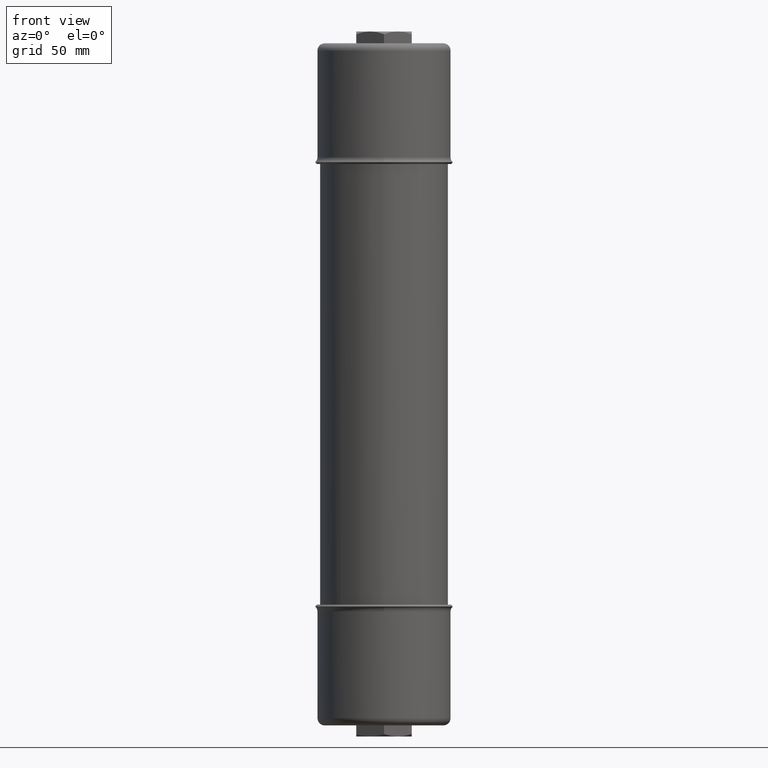
[diagram: clean part render]
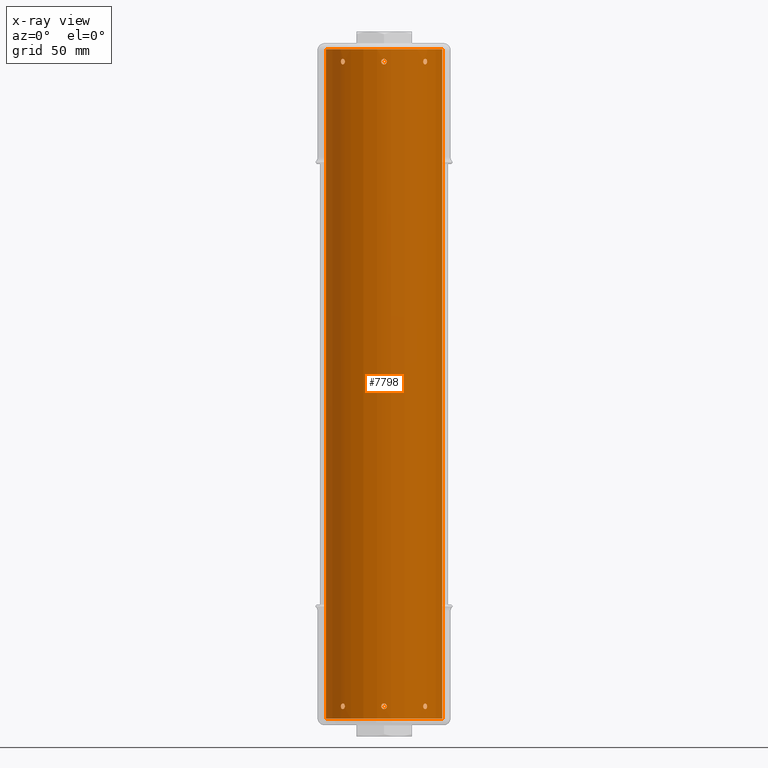
[diagram: x-ray — body ghosted, one internal face saturated and labeled with its STEP entity id]
A machine part, front view, then the same camera in x-ray: the body is ghosted and one INTERNAL B-rep face — a face not visible from any outside direction — is saturated and labeled: STEP entity #7798.
In plain terms, the highlighted cylindrical surface (partial cylindrical patch) has radius 33.3375 mm, axis along (0, 0, -1).
Its self-contained STEP definition (entity closure, byte-faithful):
#36 = CARTESIAN_POINT ( 'NONE',  ( 0.9165415773303555700, -0.9394805713272758000, -14.77050420183069000 ) ) ;
#40 = CARTESIAN_POINT ( 'NONE',  ( -0.8828306370628069600, -0.9712189847111086800, -0.3100000000000030000 ) ) ;
#46 = EDGE_LOOP ( 'NONE', ( #8348, #18426, #4462, #4743, #10593, #17486, #7983, #8605, #8120, #113, #9891, #4761, #11009, #1557 ) ) ;
#66 = CARTESIAN_POINT ( 'NONE',  ( 1.311011060212691000, -0.06249999999998869000, -0.3018388499959966400 ) ) ;
#79 = CARTESIAN_POINT ( 'NONE',  ( -0.8828306370628068400, -0.9712189847111083500, -0.3141301487100125500 ) ) ;
#98 = CARTESIAN_POINT ( 'NONE',  ( 0.9712189847111967200, -0.8828306370627677600, -14.83099999999999800 ) ) ;
#113 = ORIENTED_EDGE ( 'NONE', *, *, #6792, .F. ) ;
#121 = CARTESIAN_POINT ( 'NONE',  ( 1.312500000000000900, -0.004125203379244445800, -0.2474999999999962000 ) ) ;
#126 = ORIENTED_EDGE ( 'NONE', *, *, #3769, .F. ) ;
#139 = CARTESIAN_POINT ( 'NONE',  ( -0.9309449107950944500, -0.9252104873692863500, -0.3725014485391592900 ) ) ;
#140 = CARTESIAN_POINT ( 'NONE',  ( -1.312499999999948700, -2.750965025625994800E-016, -14.76850000000000300 ) ) ;
#208 = CARTESIAN_POINT ( 'NONE',  ( -0.9698668077373050500, -0.8843162697362821900, -0.3262320505777739900 ) ) ;
#289 = CARTESIAN_POINT ( 'NONE',  ( -0.004054849690589215300, -1.312500068978051000, -0.3725014485391564500 ) ) ;
#319 = EDGE_LOOP ( 'NONE', ( #8712, #5077 ) ) ;
#344 = CARTESIAN_POINT ( 'NONE',  ( -0.06049336555468611700, -1.311105427642915500, -0.3262320505777710500 ) ) ;
#380 = CARTESIAN_POINT ( 'NONE',  ( 5.274933061964053800E-014, -1.941094747098946400E-030, -15.10799999999999900 ) ) ;
#385 = CARTESIAN_POINT ( 'NONE',  ( -1.311951185388569300, -0.03810360618080552200, -0.2602903463439239500 ) ) ;
#398 = VECTOR ( 'NONE', #18358, 39.37007874015748100 ) ;
#445 = CARTESIAN_POINT ( 'NONE',  ( -1.311657115419698500, -0.04712089594216899900, -0.3512661366561831700 ) ) ;
#446 = EDGE_CURVE ( 'NONE', #11022, #3281, #15490, .T. ) ;
#498 = CARTESIAN_POINT ( 'NONE',  ( 0.9222431804373850700, -0.9338842128515095800, -0.2479106812639446100 ) ) ;
#609 = CARTESIAN_POINT ( 'NONE',  ( 0.04970965688644123800, -1.311560274249695000, -14.86910360190621300 ) ) ;
#669 = CARTESIAN_POINT ( 'NONE',  ( -1.312212709837972600, -0.02771971246765655300, -14.77483370397874100 ) ) ;
#678 = CARTESIAN_POINT ( 'NONE',  ( -0.04126614154973865000, -1.311854367101796600, -14.87812089162549600 ) ) ;
#699 = CARTESIAN_POINT ( 'NONE',  ( -0.04998298719896547600, -1.311560574632968800, -14.79260275102002400 ) ) ;
#701 = DIRECTION ( 'NONE',  ( -3.491483361109382100E-015, 0.0000000000000000000, 1.000000000000000000 ) ) ;
#725 = CARTESIAN_POINT ( 'NONE',  ( -1.311381155822712200, -0.05422952902976862400, -14.86233679824802500 ) ) ;
#769 = EDGE_LOOP ( 'NONE', ( #126, #825 ) ) ;
#807 = CARTESIAN_POINT ( 'NONE',  ( 1.312212706656481000, -0.02771950554006733700, -14.77483380340925100 ) ) ;
#825 = ORIENTED_EDGE ( 'NONE', *, *, #11697, .F. ) ;
#921 = CARTESIAN_POINT ( 'NONE',  ( 0.04993497171288016600, -1.311562466298477500, -14.79253848956288800 ) ) ;
#933 = CARTESIAN_POINT ( 'NONE',  ( -0.9474975229583438900, -0.9082505042319550800, -14.77484994440262700 ) ) ;
#938 = CARTESIAN_POINT ( 'NONE',  ( -0.9222958953413094000, -0.9338592093726335600, -14.89349709102296000 ) ) ;
#988 = CARTESIAN_POINT ( 'NONE',  ( -0.8840623107460666700, -0.9701030123224433400, -14.81453748152259400 ) ) ;
#992 = CARTESIAN_POINT ( 'NONE',  ( -0.9690699874245311000, -0.8851904171301695500, -14.85112863043801600 ) ) ;
#1003 = CARTESIAN_POINT ( 'NONE',  ( -0.04134628760165256400, -1.311851756863856100, -0.2629539168877412800 ) ) ;
#1065 = CARTESIAN_POINT ( 'NONE',  ( 0.9396190646468026700, -0.9164217674543537800, -14.89185621900926600 ) ) ;
#1073 = CARTESIAN_POINT ( 'NONE',  ( 0.04127688652620265000, -1.311853958045417800, -0.2628926392697805700 ) ) ;
#1117 = CARTESIAN_POINT ( 'NONE',  ( 1.311950687221228500, -0.03811968860916878400, -0.3596962604639895600 ) ) ;
#1133 = CARTESIAN_POINT ( 'NONE',  ( 0.8875063619487091300, -0.9669494157435663000, -14.85870295149559100 ) ) ;
#1192 = CARTESIAN_POINT ( 'NONE',  ( 0.9625631993316435800, -0.8922631283820546800, -0.3481036019062094800 ) ) ;
#1250 = CARTESIAN_POINT ( 'NONE',  ( 0.8984415503835770900, -0.9568006874301563400, -0.3571208916254949800 ) ) ;
#1270 = CARTESIAN_POINT ( 'NONE',  ( 1.311160040658224200, -0.05931324176633449900, -14.85112422100295500 ) ) ;
#1292 = CARTESIAN_POINT ( 'NONE',  ( 0.8840454873033568600, -0.9701183098797590000, -14.81462165856444500 ) ) ;
#1361 = CARTESIAN_POINT ( 'NONE',  ( -0.9712189847111245600, -0.8828306370627894100, -0.3100000000000025000 ) ) ;
#1415 = CARTESIAN_POINT ( 'NONE',  ( 0.8828306370628815600, -0.9712189847110893600, -14.82284310756086900 ) ) ;
#1421 = CARTESIAN_POINT ( 'NONE',  ( -0.9310291028720841800, -0.9251259668946887300, -0.2475034279177942600 ) ) ;
#1469 = CARTESIAN_POINT ( 'NONE',  ( 0.9251259668947794400, -0.9310291028720464300, -14.76850342791779300 ) ) ;
#1488 = EDGE_CURVE ( 'NONE', #2281, #16848, #15242, .T. ) ;
#1493 = VERTEX_POINT ( 'NONE', #15554 ) ;
#1515 = CARTESIAN_POINT ( 'NONE',  ( -0.8828306370628069600, -0.9712189847111086800, -0.3100000000000030000 ) ) ;
#1520 = EDGE_CURVE ( 'NONE', #2431, #17202, #11886, .T. ) ;
#1557 = ORIENTED_EDGE ( 'NONE', *, *, #15307, .F. ) ;
#1566 = CARTESIAN_POINT ( 'NONE',  ( -0.9394753195965110900, -0.9165470212482095300, -0.3704987635735133600 ) ) ;
#1629 = CARTESIAN_POINT ( 'NONE',  ( -0.9712189847111245600, -0.8828306370627893000, -0.3140793750347601900 ) ) ;
#1649 = CARTESIAN_POINT ( 'NONE',  ( 0.06209463167998816000, -1.311030563601126800, -0.3181911552443875700 ) ) ;
#1672 = CARTESIAN_POINT ( 'NONE',  ( -1.312499999999947400, -1.941094747098946400E-030, -15.10800000000000200 ) ) ;
#1687 = B_SPLINE_CURVE_WITH_KNOTS ( 'NONE', 3,
 ( #11339, #15621, #2665, #12766, #4093, #14226, #5561, #15685, #7007, #17159, #8480, #18625, #9953, #1270, #11394, #2723, #12828, #4149 ),
 .UNSPECIFIED., .F., .F.,
 ( 4, 2, 2, 2, 2, 2, 2, 2, 4 ),
 ( 0.002482540459362351600, 0.002792716823571549300, 0.003102893187780746500, 0.003413069551989944100, 0.003723245916199141800, 0.004033422280408339000, 0.004343598644617537000, 0.004653775008826733400, 0.004963951373035931400 ),
 .UNSPECIFIED. ) ;
#1712 = CARTESIAN_POINT ( 'NONE',  ( -0.01621275524315785400, -1.312405983245032500, -0.3704987635735102500 ) ) ;
#1745 = FACE_BOUND ( 'NONE', #15119, .T. ) ;
#1746 = CARTESIAN_POINT ( 'NONE',  ( 0.8828306370627929700, -0.9712189847111231100, -0.3099999999999968900 ) ) ;
#1773 = CARTESIAN_POINT ( 'NONE',  ( -0.06250000000001741700, -1.311011060212688500, -0.3140793750347573000 ) ) ;
#1816 = DIRECTION ( 'NONE',  ( 1.000000000000000000, 0.0000000000000000000, 3.330252792276435200E-015 ) ) ;
#1819 = CARTESIAN_POINT ( 'NONE',  ( -1.311561215527020200, -0.04996697165268891600, -0.2715807198531514600 ) ) ;
#1882 = CARTESIAN_POINT ( 'NONE',  ( -1.311950526312555700, -0.03812519227007859400, -0.3596920260298872000 ) ) ;
#1936 = CARTESIAN_POINT ( 'NONE',  ( 0.9338714570489984300, -0.9222843009504770900, -0.2474932081801024300 ) ) ;
#2059 = CARTESIAN_POINT ( 'NONE',  ( 0.03841928547212745300, -1.311950266959945400, -14.88096696748944200 ) ) ;
#2119 = CARTESIAN_POINT ( 'NONE',  ( -1.311951185388517300, -0.03810360618083373500, -14.78129034634391200 ) ) ;
#2130 = CARTESIAN_POINT ( 'NONE',  ( -0.04969202979297662100, -1.311560933468708800, -14.86912518729184600 ) ) ;
#2150 = CARTESIAN_POINT ( 'NONE',  ( -0.03813461133266238300, -1.311950285830958600, -14.78131394646887200 ) ) ;
#2187 = CARTESIAN_POINT ( 'NONE',  ( -1.311657115419646600, -0.04712089594220438700, -14.87226613665619900 ) ) ;
#2266 = CARTESIAN_POINT ( 'NONE',  ( 1.312406364115162000, -0.01617908123416368300, -14.77049302431464100 ) ) ;
#2281 = VERTEX_POINT ( 'NONE', #10786 ) ;
#2376 = CARTESIAN_POINT ( 'NONE',  ( 0.06083996354271277400, -1.311092873382725600, -14.81453748152258500 ) ) ;
#2391 = CARTESIAN_POINT ( 'NONE',  ( -0.9394805713272266200, -0.9165415773303013900, -14.77050420183069300 ) ) ;
#2394 = CARTESIAN_POINT ( 'NONE',  ( -0.9338593641256707200, -0.9222684025405161200, -14.89309491630771600 ) ) ;
#2431 = VERTEX_POINT ( 'NONE', #3119 ) ;
#2452 = CARTESIAN_POINT ( 'NONE',  ( -0.8828306370627185800, -0.9712189847111426500, -14.83100000000000700 ) ) ;
#2458 = CARTESIAN_POINT ( 'NONE',  ( -0.9709438334508817500, -0.8831336036831867200, -14.83922243979322400 ) ) ;
#2474 = CARTESIAN_POINT ( 'NONE',  ( -0.03133961839299342900, -1.312130187669048500, -0.2557710334232659600 ) ) ;
#2533 = CARTESIAN_POINT ( 'NONE',  ( 0.9252104873693768300, -0.9309449107950574800, -14.89350144853914800 ) ) ;
#2537 = CARTESIAN_POINT ( 'NONE',  ( 0.05459339693407450100, -1.311367829714471500, -0.2785027510775256500 ) ) ;
#2549 = VERTEX_POINT ( 'NONE', #15241 ) ;
#2559 = CARTESIAN_POINT ( 'NONE',  ( -0.008231452959947328400, -1.312480266540686900, -14.76891068126394700 ) ) ;
#2579 = CARTESIAN_POINT ( 'NONE',  ( 1.311657536342498900, -0.04710919061837654700, -0.3512794173317591000 ) ) ;
#2592 = CARTESIAN_POINT ( 'NONE',  ( 0.8843162697363744500, -0.9698668077372690800, -14.84723205057777100 ) ) ;
#2649 = CARTESIAN_POINT ( 'NONE',  ( 0.9548554676324986200, -0.9005223930612613600, -0.3599669674894349600 ) ) ;
#2665 = CARTESIAN_POINT ( 'NONE',  ( 1.312480398968174600, -0.008216472667658878500, -14.89309214832348100 ) ) ;
#2706 = CARTESIAN_POINT ( 'NONE',  ( 0.8922760587574795100, -0.9625512012326845600, -0.3481251872918438300 ) ) ;
#2723 = CARTESIAN_POINT ( 'NONE',  ( 1.311030719532310500, -0.06209139667562437600, -14.83922056747414500 ) ) ;
#2787 = CARTESIAN_POINT ( 'NONE',  ( -0.8831310667289727900, -0.9709461370013818800, -0.3181911552443909600 ) ) ;
#2827 = CARTESIAN_POINT ( 'NONE',  ( -0.9712189847110395100, -0.8828306370628269400, -14.82284310756087100 ) ) ;
#2869 = CARTESIAN_POINT ( 'NONE',  ( 0.8828306370628812300, -0.9712189847110890300, -14.83099999999999400 ) ) ;
#2874 = CARTESIAN_POINT ( 'NONE',  ( -0.9164906898069064000, -0.9395523004986789900, -0.2491099630409642800 ) ) ;
#2921 = CARTESIAN_POINT ( 'NONE',  ( 0.9395523004987694800, -0.9164906898068675400, -14.77010996304095900 ) ) ;
#2946 = CARTESIAN_POINT ( 'NONE',  ( 1.311366334071222900, -0.05462889653323224600, -0.2785632679764862300 ) ) ;
#2962 = CARTESIAN_POINT ( 'NONE',  ( -0.8851959953786219200, -0.9690648926929755800, -0.3301504166642263400 ) ) ;
#3020 = CARTESIAN_POINT ( 'NONE',  ( -0.9474458144734987400, -0.9083044652828006200, -0.3661871549782104700 ) ) ;
#3113 = CARTESIAN_POINT ( 'NONE',  ( 0.05930426602161233100, -1.311160448044417000, -0.3301504166642231200 ) ) ;
#3119 = CARTESIAN_POINT ( 'NONE',  ( 1.312500000000001100, 1.607348936001590600E-016, -0.3724999999999955000 ) ) ;
#3123 = VERTEX_POINT ( 'NONE', #17834 ) ;
#3172 = CARTESIAN_POINT ( 'NONE',  ( -0.02767711343753881700, -1.312213607004512700, -0.3661871549782077500 ) ) ;
#3271 = CARTESIAN_POINT ( 'NONE',  ( -1.311092102956191300, -0.06085621888087932400, -0.2935970343009249300 ) ) ;
#3281 = VERTEX_POINT ( 'NONE', #12503 ) ;
#3324 = CARTESIAN_POINT ( 'NONE',  ( 0.8840454873032688200, -0.9701183098797934200, -0.2936216585644453900 ) ) ;
#3334 = CARTESIAN_POINT ( 'NONE',  ( -1.312213070980327200, -0.02770295476361768800, -0.3661747205098452300 ) ) ;
#3379 = CARTESIAN_POINT ( 'NONE',  ( 0.9474446965540079800, -0.9083056544690569800, -0.2538116197197603000 ) ) ;
#3504 = CARTESIAN_POINT ( 'NONE',  ( 0.01640296614998743400, -1.312419058537813500, -14.89185621900927200 ) ) ;
#3539 = VECTOR ( 'NONE', #5245, 39.37007874015748100 ) ;
#3555 = CARTESIAN_POINT ( 'NONE',  ( -1.311561215526967400, -0.04996697165272687100, -14.79258071985313300 ) ) ;
#3563 = CARTESIAN_POINT ( 'NONE',  ( -0.05617472205650569900, -1.311298255816743400, -14.85870295149559100 ) ) ;
#3581 = CARTESIAN_POINT ( 'NONE',  ( -0.02775183308277631700, -1.312212014199854600, -14.77484994440262300 ) ) ;
#3605 = CARTESIAN_POINT ( 'NONE',  ( -1.311950526312503800, -0.03812519227010633500, -14.88069202602990700 ) ) ;
#3683 = CARTESIAN_POINT ( 'NONE',  ( 1.312500000000000000, 1.607348923880881800E-016, -0.02999999999999591500 ) ) ;
#3690 = CARTESIAN_POINT ( 'NONE',  ( 1.312500000000051700, -0.004125203379241670200, -14.76849999999999600 ) ) ;
#3696 = AXIS2_PLACEMENT_3D ( 'NONE', #9363, #701, #10811 ) ;
#3754 = CARTESIAN_POINT ( 'NONE',  ( -0.8843066081155650500, -0.9698756130673738000, -14.84718057488166200 ) ) ;
#3769 = EDGE_CURVE ( 'NONE', #5495, #8827, #5031, .T. ) ;
#3809 = CARTESIAN_POINT ( 'NONE',  ( 0.06250000000008391900, -1.311011060212688100, -14.83100000000000000 ) ) ;
#3817 = CARTESIAN_POINT ( 'NONE',  ( -0.9310291028719972500, -0.9251259668947245900, -14.76850342791780000 ) ) ;
#3822 = EDGE_CURVE ( 'NONE', #15748, #18367, #17702, .T. ) ;
#3824 = CARTESIAN_POINT ( 'NONE',  ( -0.9421919357103166700, -0.9137532102807501800, -14.89031811224868600 ) ) ;
#3883 = CARTESIAN_POINT ( 'NONE',  ( -0.9712189847110395100, -0.8828306370628269400, -14.83100000000000300 ) ) ;
#3889 = CARTESIAN_POINT ( 'NONE',  ( 0.9709461370014699200, -0.8831310667289338200, -14.83919115524438400 ) ) ;
#3896 = CARTESIAN_POINT ( 'NONE',  ( -0.02019413915220989400, -1.312350079511483500, -0.2507109645301144300 ) ) ;
#3952 = CARTESIAN_POINT ( 'NONE',  ( 0.9165470212483007900, -0.9394753195964745700, -14.89149876357350900 ) ) ;
#3958 = CARTESIAN_POINT ( 'NONE',  ( 0.06249999999998258300, -1.311011060212690800, -0.3017415833312412400 ) ) ;
#4008 = CARTESIAN_POINT ( 'NONE',  ( 1.311381463636387900, -0.05422206663722904000, -0.3413494462690118100 ) ) ;
#4021 = CARTESIAN_POINT ( 'NONE',  ( 0.8828306370628819000, -0.9712189847110891400, -14.83507937503476400 ) ) ;
#4027 = EDGE_CURVE ( 'NONE', #4765, #15507, #18135, .T. ) ;
#4073 = CARTESIAN_POINT ( 'NONE',  ( 0.9396190646467179600, -0.9164217674543889700, -0.3708562190092673500 ) ) ;
#4093 = CARTESIAN_POINT ( 'NONE',  ( 1.312351139337019700, -0.02012588478396977800, -14.89031240257251900 ) ) ;
#4132 = CARTESIAN_POINT ( 'NONE',  ( 0.8875063619486203100, -0.9669494157436003800, -0.3377029514955873200 ) ) ;
#4149 = CARTESIAN_POINT ( 'NONE',  ( 1.311011060212744100, -0.06249999999993793900, -14.83099999999999800 ) ) ;
#4244 = CARTESIAN_POINT ( 'NONE',  ( -0.9659099271619355800, -0.8886416439686581900, -0.2785783248774620400 ) ) ;
#4263 = CARTESIAN_POINT ( 'NONE',  ( -0.9659099271618499800, -0.8886416439686960500, -14.79957832487746200 ) ) ;
#4293 = EDGE_CURVE ( 'NONE', #12389, #8288, #10602, .T. ) ;
#4298 = CARTESIAN_POINT ( 'NONE',  ( 0.8886416439687502300, -0.9659099271618997200, -14.79957832487745000 ) ) ;
#4304 = CARTESIAN_POINT ( 'NONE',  ( -0.9057086049094534900, -0.9499261609024032300, -0.2557293295585513200 ) ) ;
#4360 = CARTESIAN_POINT ( 'NONE',  ( 0.9499261609024936000, -0.9057086049094144100, -14.77672932955854400 ) ) ;
#4392 = CARTESIAN_POINT ( 'NONE',  ( 1.311852417433046400, -0.04132551438322647900, -0.2629354773971657200 ) ) ;
#4407 = CARTESIAN_POINT ( 'NONE',  ( -0.8889282232637603100, -0.9656438354087029100, -0.3413096134214210800 ) ) ;
#4462 = ORIENTED_EDGE ( 'NONE', *, *, #11283, .F. ) ;
#4463 = CARTESIAN_POINT ( 'NONE',  ( -0.9546368764913544200, -0.9007420047900220900, -0.3597042065781074200 ) ) ;
#4545 = CARTESIAN_POINT ( 'NONE',  ( 0.05424612957056045000, -1.311380478886395400, -0.3413096134214179100 ) ) ;
#4603 = CARTESIAN_POINT ( 'NONE',  ( -0.03810942925119644600, -1.311950988624372100, -0.3597042065781048100 ) ) ;
#4669 = LINE ( 'NONE', #16874, #398 ) ;
#4711 = CARTESIAN_POINT ( 'NONE',  ( -1.311010991154080200, -0.06250144858568176800, -0.3140548486600865400 ) ) ;
#4743 = ORIENTED_EDGE ( 'NONE', *, *, #1520, .F. ) ;
#4750 = EDGE_CURVE ( 'NONE', #2431, #9961, #17151, .T. ) ;
#4761 = ORIENTED_EDGE ( 'NONE', *, *, #11200, .F. ) ;
#4765 = VERTEX_POINT ( 'NONE', #18206 ) ;
#4771 = CARTESIAN_POINT ( 'NONE',  ( 0.8920700670674831500, -0.9627566854523104100, -0.2716027510200209600 ) ) ;
#4785 = CARTESIAN_POINT ( 'NONE',  ( -1.312405733896897300, -0.01623205155251898300, -0.3704933653344343300 ) ) ;
#4832 = CARTESIAN_POINT ( 'NONE',  ( 0.9546014057915983600, -0.9007796313386063900, -0.2602555521035210300 ) ) ;
#4957 = CARTESIAN_POINT ( 'NONE',  ( -0.004054849690487506700, -1.312500068978050600, -14.89350144853915100 ) ) ;
#5010 = CARTESIAN_POINT ( 'NONE',  ( -1.311092102956138600, -0.06085621888092846600, -14.81459703430091700 ) ) ;
#5023 = ORIENTED_EDGE ( 'NONE', *, *, #446, .F. ) ;
#5024 = CARTESIAN_POINT ( 'NONE',  ( -0.06049336555458480200, -1.311105427642917700, -14.84723205057777100 ) ) ;
#5031 = B_SPLINE_CURVE_WITH_KNOTS ( 'NONE', 3,
 ( #1515, #79, #2787, #11637, #2962, #13068, #4407, #14531, #5864, #15986, #7320, #17475, #8799, #139, #10261, #1566, #11704, #3020, #13131, #4463, #14597, #5928, #16054, #7386, #17544, #8859, #208, #10315, #1629, #11759 ),
 .UNSPECIFIED., .F., .F.,
 ( 4, 2, 2, 2, 2, 2, 2, 2, 2, 2, 2, 2, 2, 2, 4 ),
 ( 0.0000000000000000000, 0.0003102469608147468500, 0.0006204939216294937100, 0.0009307408824442405100, 0.001240987843258987400, 0.001861481764888479500, 0.002481975686517971400, 0.002792222647332724800, 0.003102469608147478600, 0.003412716568962231600, 0.003722963529776985000, 0.004033210490591738900, 0.004343457451406492300, 0.004653704412221245700, 0.004963951373035999100 ),
 .UNSPECIFIED. ) ;
#5048 = B_SPLINE_CURVE_WITH_KNOTS ( 'NONE', 3,
 ( #11501, #2827, #12940, #4263, #14401, #5729, #15868, #15492, #933, #11047, #2391, #12489, #3817, #13943, #5282, #15400, #6737, #16865, #8210, #18345, #9666, #988, #11117, #2452 ),
 .UNSPECIFIED., .F., .F.,
 ( 4, 2, 2, 2, 2, 2, 2, 2, 2, 2, 2, 4 ),
 ( 0.004963951373035980000, 0.005584304017097981000, 0.006204656661159982000, 0.006514832983191038900, 0.006825009305222095800, 0.007135185627253152700, 0.007445361949284208700, 0.008065714593346337200, 0.008375890915377401000, 0.008686067237408464900, 0.009306419881470715700, 0.009926772525532966500 ),
 .UNSPECIFIED. ) ;
#5068 = CARTESIAN_POINT ( 'NONE',  ( -1.312213070980276400, -0.02770295476363503900, -14.88717472050986100 ) ) ;
#5077 = ORIENTED_EDGE ( 'NONE', *, *, #6582, .F. ) ;
#5122 = CARTESIAN_POINT ( 'NONE',  ( -1.312499999999948000, 2.168668695248827000E-025, -14.89350000000000300 ) ) ;
#5129 = FACE_OUTER_BOUND ( 'NONE', #46, .T. ) ;
#5139 = CARTESIAN_POINT ( 'NONE',  ( -0.9712189847111245600, -0.8828306370627894100, -0.3100000000000025000 ) ) ;
#5209 = CARTESIAN_POINT ( 'NONE',  ( -0.004174147479787278100, -1.312499836765875300, -14.76850342791779400 ) ) ;
#5222 = CARTESIAN_POINT ( 'NONE',  ( -0.8875125746074997700, -0.9669437141829273500, -14.85871970946798200 ) ) ;
#5226 = CARTESIAN_POINT ( 'NONE',  ( 0.9712189847111969400, -0.8828306370627679900, -14.83513014871000900 ) ) ;
#5245 = DIRECTION ( 'NONE',  ( 3.491483361109382100E-015, 0.0000000000000000000, -1.000000000000000000 ) ) ;
#5282 = CARTESIAN_POINT ( 'NONE',  ( -0.9164906898068184700, -0.9395523004987150800, -14.77010996304096200 ) ) ;
#5285 = CARTESIAN_POINT ( 'NONE',  ( -0.9499746460377702700, -0.9056577151637549300, -14.88522952672077600 ) ) ;
#5350 = CARTESIAN_POINT ( 'NONE',  ( 0.9690648926930636200, -0.8851959953785831800, -14.85115041666421300 ) ) ;
#5360 = CARTESIAN_POINT ( 'NONE',  ( -0.008231452960048620700, -1.312480266540686700, -0.2479106812639475500 ) ) ;
#5383 = ORIENTED_EDGE ( 'NONE', *, *, #9029, .F. ) ;
#5421 = CARTESIAN_POINT ( 'NONE',  ( 0.9083044652828912200, -0.9474458144734621000, -14.88718715497820000 ) ) ;
#5469 = CARTESIAN_POINT ( 'NONE',  ( 1.311160040658171600, -0.05931324176638216200, -0.3301242210029651800 ) ) ;
#5473 = CARTESIAN_POINT ( 'NONE',  ( 0.9712189847111121200, -0.8828306370628051800, -0.3141301487100060000 ) ) ;
#5495 = VERTEX_POINT ( 'NONE', #8568 ) ;
#5543 = CARTESIAN_POINT ( 'NONE',  ( 0.9252104873692904600, -0.9309449107950928900, -0.3725014485391536200 ) ) ;
#5561 = CARTESIAN_POINT ( 'NONE',  ( 1.312129915562651600, -0.03134965782265263000, -14.88522202429054500 ) ) ;
#5581 = VECTOR ( 'NONE', #13806, 39.37007874015748100 ) ;
#5591 = FACE_BOUND ( 'NONE', #13992, .T. ) ;
#5598 = CARTESIAN_POINT ( 'NONE',  ( 0.8843162697362860800, -0.9698668077373034900, -0.3262320505777684400 ) ) ;
#5682 = CARTESIAN_POINT ( 'NONE',  ( 1.311011060212691000, -0.06249999999998867600, -0.3099999999999954500 ) ) ;
#5697 = CARTESIAN_POINT ( 'NONE',  ( 0.8828306370628812300, -0.9712189847110890300, -14.83099999999999400 ) ) ;
#5698 = VERTEX_POINT ( 'NONE', #14740 ) ;
#5708 = CARTESIAN_POINT ( 'NONE',  ( -0.9568555135299324800, -0.8983830328499050600, -0.2629539168877441700 ) ) ;
#5729 = CARTESIAN_POINT ( 'NONE',  ( -0.9568555135298471000, -0.8983830328499419200, -14.78395391688774700 ) ) ;
#5768 = CARTESIAN_POINT ( 'NONE',  ( 0.8983830328499964300, -0.9568555135298958400, -14.78395391688773800 ) ) ;
#5771 = CARTESIAN_POINT ( 'NONE',  ( -0.8984336632913776400, -0.9568079960292771300, -0.2628926392697836200 ) ) ;
#5825 = CARTESIAN_POINT ( 'NONE',  ( 0.9568079960293660600, -0.8984336632913386700, -14.78389263926977500 ) ) ;
#5848 = CARTESIAN_POINT ( 'NONE',  ( 1.312130896280726800, -0.03131023753609659500, -0.2557539181891692000 ) ) ;
#5864 = CARTESIAN_POINT ( 'NONE',  ( -0.8941996696589261700, -0.9607661132658557000, -0.3513198091335148500 ) ) ;
#5928 = CARTESIAN_POINT ( 'NONE',  ( -0.9607884885219150100, -0.8941757406943197100, -0.3512873319484546800 ) ) ;
#5965 = CARTESIAN_POINT ( 'NONE',  ( -1.312500000000000000, -1.941094747098946400E-030, -0.03000000000000508500 ) ) ;
#5979 = AXIS2_PLACEMENT_3D ( 'NONE', #380, #10501, #1816 ) ;
#6013 = CARTESIAN_POINT ( 'NONE',  ( 0.04706958367392621200, -1.311658883975127500, -0.3513198091335118000 ) ) ;
#6077 = CARTESIAN_POINT ( 'NONE',  ( -0.04710232570236756000, -1.311657785337277500, -0.3512873319484520800 ) ) ;
#6120 = CARTESIAN_POINT ( 'NONE',  ( -1.312499999999999100, -6.036516694053329100E-018, -0.2475000000000043800 ) ) ;
#6175 = CARTESIAN_POINT ( 'NONE',  ( -1.311105178040042200, -0.06049876390937404500, -0.3262127539668979200 ) ) ;
#6230 = CARTESIAN_POINT ( 'NONE',  ( 0.9007237014193954000, -0.9546541859620041300, -0.2603139464688678500 ) ) ;
#6241 = CARTESIAN_POINT ( 'NONE',  ( -1.312499999999998700, -0.004079375005731071500, -0.3725000000000041600 ) ) ;
#6292 = CARTESIAN_POINT ( 'NONE',  ( 0.9627240709858776400, -0.8921053567529372300, -0.2715384895628856200 ) ) ;
#6361 = CARTESIAN_POINT ( 'NONE',  ( 0.06209463168008978000, -1.311030563601124600, -14.83919115524438900 ) ) ;
#6378 = CARTESIAN_POINT ( 'NONE',  ( 1.312500000000000900, 1.607348924490898600E-016, -0.2474999999999954500 ) ) ;
#6415 = CARTESIAN_POINT ( 'NONE',  ( -0.01621275524305634500, -1.312405983245033200, -14.89149876357351100 ) ) ;
#6479 = CARTESIAN_POINT ( 'NONE',  ( -1.311010991154027500, -0.06250144858573249100, -14.83505484866008600 ) ) ;
#6485 = CARTESIAN_POINT ( 'NONE',  ( -0.06249999999991599800, -1.311011060212691000, -14.83507937503476300 ) ) ;
#6528 = CARTESIAN_POINT ( 'NONE',  ( -1.312405733896847300, -0.01623205155252883600, -14.89149336533444600 ) ) ;
#6544 = B_SPLINE_CURVE_WITH_KNOTS ( 'NONE', 3,
 ( #1746, #17764, #3324, #13414, #4771, #14889, #6230, #16356, #7694, #17824, #9152, #498, #10611, #1936, #12059, #3379, #13487, #4832, #14960, #6292, #16427, #7749, #17887, #9217 ),
 .UNSPECIFIED., .F., .F.,
 ( 4, 2, 2, 2, 2, 2, 2, 2, 2, 2, 2, 4 ),
 ( 0.004963951373036007800, 0.005584304017098109400, 0.006204656661160211000, 0.006514832983191267900, 0.006825009305222324800, 0.007135185627253381700, 0.007445361949284438500, 0.008065714593346559300, 0.008375890915377623100, 0.008686067237408686900, 0.009306419881470814500, 0.009926772525532942200 ),
 .UNSPECIFIED. ) ;
#6547 = CARTESIAN_POINT ( 'NONE',  ( 1.311366334071275100, -0.05462889653318987700, -14.79956326797650100 ) ) ;
#6582 = EDGE_CURVE ( 'NONE', #9574, #3123, #5048, .T. ) ;
#6615 = DIRECTION ( 'NONE',  ( 3.491483361109382100E-015, 0.0000000000000000000, -1.000000000000000000 ) ) ;
#6658 = CARTESIAN_POINT ( 'NONE',  ( 0.01630702130533171600, -1.312420584618836600, -14.77010996304095900 ) ) ;
#6673 = CARTESIAN_POINT ( 'NONE',  ( -0.8922631283819685300, -0.9625631993316740000, -14.86910360190622000 ) ) ;
#6682 = EDGE_CURVE ( 'NONE', #5698, #1493, #10054, .T. ) ;
#6688 = CARTESIAN_POINT ( 'NONE',  ( -0.06250000000001743100, -1.311011060212688800, -0.3018431075608697400 ) ) ;
#6737 = CARTESIAN_POINT ( 'NONE',  ( -0.9057086049093655600, -0.9499261609024394200, -14.77672932955855600 ) ) ;
#6741 = CARTESIAN_POINT ( 'NONE',  ( -0.9568006874300729600, -0.8984415503836101800, -14.87812089162550700 ) ) ;
#6753 = CARTESIAN_POINT ( 'NONE',  ( -0.06086267651973614100, -1.311091794418740400, -0.2936216585644481100 ) ) ;
#6792 = EDGE_CURVE ( 'NONE', #8288, #15904, #15399, .T. ) ;
#6807 = CARTESIAN_POINT ( 'NONE',  ( 0.9656438354087904000, -0.8889282232637220100, -14.86230961342140900 ) ) ;
#6814 = CARTESIAN_POINT ( 'NONE',  ( 0.008193356651922457600, -1.312500323419885100, -0.2474932081801053400 ) ) ;
#6862 = CARTESIAN_POINT ( 'NONE',  ( 1.312500000000001100, 1.607348936001590600E-016, -0.3724999999999955000 ) ) ;
#6871 = CARTESIAN_POINT ( 'NONE',  ( 0.9007420047901137900, -0.9546368764913181200, -14.88070420657810200 ) ) ;
#6917 = CARTESIAN_POINT ( 'NONE',  ( 1.311030719532258100, -0.06209139667567513400, -0.3182205674741451800 ) ) ;
#6923 = CARTESIAN_POINT ( 'NONE',  ( 0.9709461370013852100, -0.8831310667289712400, -0.3181911552443842900 ) ) ;
#6992 = CARTESIAN_POINT ( 'NONE',  ( 0.9165470212482134100, -0.9394753195965097600, -0.3704987635735074200 ) ) ;
#7007 = CARTESIAN_POINT ( 'NONE',  ( 1.311854079303052200, -0.04127521169984022000, -14.87811287547048300 ) ) ;
#7055 = CARTESIAN_POINT ( 'NONE',  ( 0.8828306370627929700, -0.9712189847111228900, -0.3140793750347545300 ) ) ;
#7121 = B_SPLINE_CURVE_WITH_KNOTS ( 'NONE', 3,
 ( #1361, #10042, #12920, #4244, #14380, #5708, #15844, #7157, #17320, #8641, #18784, #10101, #1421, #11536, #2874, #12970, #4304, #14434, #5771, #15902, #7223, #17379, #8705, #40 ),
 .UNSPECIFIED., .F., .F.,
 ( 4, 2, 2, 2, 2, 2, 2, 2, 2, 2, 2, 4 ),
 ( 0.004963951373035999100, 0.005584304017098120700, 0.006204656661160242200, 0.006514832983191304300, 0.006825009305222366400, 0.007135185627253429400, 0.007445361949284491500, 0.008065714593346609600, 0.008375890915377666400, 0.008686067237408726800, 0.009306419881470840600, 0.009926772525532957800 ),
 .UNSPECIFIED. ) ;
#7157 = CARTESIAN_POINT ( 'NONE',  ( -0.9499766101858411200, -0.9056556968148806700, -0.2557710334232686200 ) ) ;
#7215 = CARTESIAN_POINT ( 'NONE',  ( 0.9056556968149719300, -0.9499766101858037000, -14.77677103342325700 ) ) ;
#7223 = CARTESIAN_POINT ( 'NONE',  ( -0.8886737238408908300, -0.9658804462010851500, -0.2785027510775287500 ) ) ;
#7235 = B_SPLINE_CURVE_WITH_KNOTS ( 'NONE', 3,
 ( #2869, #1415, #1292, #4298, #14427, #5768, #15899, #7215, #17372, #8700, #36, #10157, #1469, #11605, #2921, #13027, #4360, #14495, #5825, #15950, #7273, #17439, #8747, #98 ),
 .UNSPECIFIED., .F., .F.,
 ( 4, 2, 2, 2, 2, 2, 2, 2, 2, 2, 2, 4 ),
 ( 0.004963951373035915000, 0.005584304017098130200, 0.006204656661160344600, 0.006514832983191392800, 0.006825009305222441000, 0.007135185627253490100, 0.007445361949284538300, 0.008065714593346651200, 0.008375890915377706300, 0.008686067237408761500, 0.009306419881470868300, 0.009926772525532973400 ),
 .UNSPECIFIED. ) ;
#7273 = CARTESIAN_POINT ( 'NONE',  ( 0.9658804462011739700, -0.8886737238408513000, -14.79950275107752100 ) ) ;
#7305 = CARTESIAN_POINT ( 'NONE',  ( 1.312350683461361900, -0.02015544880362352800, -0.2506976348668600900 ) ) ;
#7320 = CARTESIAN_POINT ( 'NONE',  ( -0.9055907630196442500, -0.9500622150392538100, -0.3646230873189397200 ) ) ;
#7386 = CARTESIAN_POINT ( 'NONE',  ( -0.9656250266053061400, -0.8889486419471948100, -0.3413559204756437300 ) ) ;
#7409 = CARTESIAN_POINT ( 'NONE',  ( 0.06249999999998256900, -1.311011060212691000, -0.3141301487100093300 ) ) ;
#7469 = CARTESIAN_POINT ( 'NONE',  ( 0.03144606529227250000, -1.312144804314459200, -0.3646230873189367200 ) ) ;
#7495 = ORIENTED_EDGE ( 'NONE', *, *, #14149, .F. ) ;
#7514 = CARTESIAN_POINT ( 'NONE',  ( -1.312499999999999600, -0.004130148594536598900, -0.2475000000000040800 ) ) ;
#7530 = CARTESIAN_POINT ( 'NONE',  ( -0.05421839154862432400, -1.311381617243486900, -0.3413559204756408900 ) ) ;
#7575 = CARTESIAN_POINT ( 'NONE',  ( -1.312350768268304700, -0.02015041799388808700, -0.2506957343633212700 ) ) ;
#7636 = CARTESIAN_POINT ( 'NONE',  ( -1.311297719411122800, -0.05618715639196084800, -0.3376771104588718300 ) ) ;
#7684 = ORIENTED_EDGE ( 'NONE', *, *, #15058, .F. ) ;
#7694 = CARTESIAN_POINT ( 'NONE',  ( 0.9082505042319214400, -0.9474975229584284800, -0.2538499444026201500 ) ) ;
#7749 = CARTESIAN_POINT ( 'NONE',  ( 0.9701030123224121400, -0.8840623107461538200, -0.2935374815225808000 ) ) ;
#7798 = ADVANCED_FACE ( 'NONE', ( #13264, #1745, #5591, #9451, #12833, #8990, #5129 ), #14414, .F. ) ;
#7815 = CARTESIAN_POINT ( 'NONE',  ( 0.05930426602171408300, -1.311160448044415200, -14.85115041666421800 ) ) ;
#7871 = CARTESIAN_POINT ( 'NONE',  ( -1.312499999999948700, -2.750965025625994800E-016, -14.76850000000000300 ) ) ;
#7886 = CARTESIAN_POINT ( 'NONE',  ( -0.02767711343743722500, -1.312213607004513800, -14.88718715497820700 ) ) ;
#7904 = CARTESIAN_POINT ( 'NONE',  ( -0.06249999999991599800, -1.311011060212690800, -14.83100000000000000 ) ) ;
#7940 = CARTESIAN_POINT ( 'NONE',  ( -1.311105178039989200, -0.06049876390942287400, -14.84721275396690700 ) ) ;
#7968 = CARTESIAN_POINT ( 'NONE',  ( -0.8828306370627185800, -0.9712189847111431000, -14.83513014871001400 ) ) ;
#7973 = VERTEX_POINT ( 'NONE', #9844 ) ;
#7983 = ORIENTED_EDGE ( 'NONE', *, *, #9418, .F. ) ;
#8005 = CARTESIAN_POINT ( 'NONE',  ( -1.312499999999948000, -0.004079375005732868700, -14.89350000000000700 ) ) ;
#8016 = CARTESIAN_POINT ( 'NONE',  ( 1.311852417433097900, -0.04132551438319604500, -14.78393547739718300 ) ) ;
#8086 = CARTESIAN_POINT ( 'NONE',  ( 1.312500000000000000, 1.607348923880881800E-016, -0.02999999999999591500 ) ) ;
#8120 = ORIENTED_EDGE ( 'NONE', *, *, #17314, .F. ) ;
#8127 = EDGE_LOOP ( 'NONE', ( #8216, #5383 ) ) ;
#8131 = CARTESIAN_POINT ( 'NONE',  ( 0.03126653369020652300, -1.312131926311074700, -14.77672932955855100 ) ) ;
#8146 = CARTESIAN_POINT ( 'NONE',  ( -0.9005223930611759900, -0.9548554676325290400, -14.88096696748944600 ) ) ;
#8210 = CARTESIAN_POINT ( 'NONE',  ( -0.8984336632912886000, -0.9568079960293125500, -14.78389263926978400 ) ) ;
#8215 = CARTESIAN_POINT ( 'NONE',  ( -0.9625512012326003000, -0.8922760587575131500, -14.86912518729185400 ) ) ;
#8216 = ORIENTED_EDGE ( 'NONE', *, *, #11201, .F. ) ;
#8221 = CARTESIAN_POINT ( 'NONE',  ( 0.9712189847111967200, -0.8828306370627677600, -14.83099999999999800 ) ) ;
#8228 = CARTESIAN_POINT ( 'NONE',  ( -0.06250000000001743100, -1.311011060212688300, -0.3099999999999997200 ) ) ;
#8288 = VERTEX_POINT ( 'NONE', #5122 ) ;
#8290 = CARTESIAN_POINT ( 'NONE',  ( 0.9607661132659435200, -0.8941996696588887500, -14.87231980913350800 ) ) ;
#8299 = CARTESIAN_POINT ( 'NONE',  ( 0.02767548206740567300, -1.312213657397724600, -0.2538116197197632900 ) ) ;
#8345 = CARTESIAN_POINT ( 'NONE',  ( 1.312351139336968700, -0.02012588478398287200, -0.3693124025725257900 ) ) ;
#8348 = ORIENTED_EDGE ( 'NONE', *, *, #18734, .T. ) ;
#8358 = CARTESIAN_POINT ( 'NONE',  ( 0.8941757406944111900, -0.9607884885218792600, -14.87228733194844400 ) ) ;
#8403 = CARTESIAN_POINT ( 'NONE',  ( 1.311011060212691000, -0.06249999999998867600, -0.3099999999999954500 ) ) ;
#8410 = CARTESIAN_POINT ( 'NONE',  ( 0.9690648926929792400, -0.8851959953786201500, -0.3301504166642198500 ) ) ;
#8411 = CIRCLE ( 'NONE', #5979, 1.312500000000000000 ) ;
#8471 = CARTESIAN_POINT ( 'NONE',  ( 0.9083044652828046200, -0.9474458144734970700, -0.3661871549782049800 ) ) ;
#8480 = CARTESIAN_POINT ( 'NONE',  ( 1.311560719865327200, -0.04969762354484358300, -14.86911779775611100 ) ) ;
#8568 = CARTESIAN_POINT ( 'NONE',  ( -0.8828306370628069600, -0.9712189847111086800, -0.3100000000000030000 ) ) ;
#8605 = ORIENTED_EDGE ( 'NONE', *, *, #13135, .T. ) ;
#8641 = CARTESIAN_POINT ( 'NONE',  ( -0.9422510532480225000, -0.9136922277785262100, -0.2507109645301172100 ) ) ;
#8700 = CARTESIAN_POINT ( 'NONE',  ( 0.9136922277786174700, -0.9422510532479854200, -14.77171096453011000 ) ) ;
#8705 = CARTESIAN_POINT ( 'NONE',  ( -0.8828306370628070700, -0.9712189847111089000, -0.3017415833312444600 ) ) ;
#8712 = ORIENTED_EDGE ( 'NONE', *, *, #13873, .F. ) ;
#8747 = CARTESIAN_POINT ( 'NONE',  ( 0.9712189847111969400, -0.8828306370627676500, -14.82274158333124000 ) ) ;
#8762 = B_SPLINE_CURVE_WITH_KNOTS ( 'NONE', 3,
 ( #9081, #13295, #6361, #16483, #7815, #17952, #9283, #609, #10726, #2059, #12190, #3504, #13623, #4957, #15085, #6415, #16547, #7886, #18019, #9338, #678, #10784, #2130, #12245, #3563, #13678, #5024, #15146, #6485, #16609 ),
 .UNSPECIFIED., .F., .F.,
 ( 4, 2, 2, 2, 2, 2, 2, 2, 2, 2, 2, 2, 2, 2, 4 ),
 ( 0.0000000000000000000, 0.0003102469608147487500, 0.0006204939216294975000, 0.0009307408824442462500, 0.001240987843258995000, 0.001861481764888492500, 0.002481975686517990000, 0.002792222647332738600, 0.003102469608147487300, 0.003412716568962236400, 0.003722963529776985000, 0.004033210490591733700, 0.004343457451406482700, 0.004653704412221230900, 0.004963951373035980000 ),
 .UNSPECIFIED. ) ;
#8782 = CARTESIAN_POINT ( 'NONE',  ( 1.312480564079610000, -0.008185117757110874400, -0.2479044234790071500 ) ) ;
#8799 = CARTESIAN_POINT ( 'NONE',  ( -0.9222958953413956700, -0.9338592093725985900, -0.3724970910229583000 ) ) ;
#8827 = VERTEX_POINT ( 'NONE', #5139 ) ;
#8859 = CARTESIAN_POINT ( 'NONE',  ( -0.9690699874246159200, -0.8851904171301319100, -0.3301286304380105000 ) ) ;
#8943 = CARTESIAN_POINT ( 'NONE',  ( 0.008176497764447603800, -1.312499861477292500, -0.3724970910229552000 ) ) ;
#8990 = FACE_BOUND ( 'NONE', #769, .T. ) ;
#8994 = CARTESIAN_POINT ( 'NONE',  ( -0.05931181295824888100, -1.311160106146373300, -0.3301286304380078300 ) ) ;
#9029 = EDGE_CURVE ( 'NONE', #18429, #11290, #7235, .T. ) ;
#9040 = CARTESIAN_POINT ( 'NONE',  ( -1.312130902586746500, -0.03130961710627795700, -0.2557538725138177600 ) ) ;
#9081 = CARTESIAN_POINT ( 'NONE',  ( 0.06250000000008391900, -1.311011060212688100, -14.83100000000000000 ) ) ;
#9094 = CARTESIAN_POINT ( 'NONE',  ( -1.311560471019981300, -0.04970421032145162800, -0.3481094242877408300 ) ) ;
#9152 = CARTESIAN_POINT ( 'NONE',  ( 0.9165415773302677500, -0.9394805713273114400, -0.2495042018306829800 ) ) ;
#9217 = CARTESIAN_POINT ( 'NONE',  ( 0.9712189847111121200, -0.8828306370628052900, -0.3099999999999964500 ) ) ;
#9283 = CARTESIAN_POINT ( 'NONE',  ( 0.05424612957066132100, -1.311380478886393000, -14.86230961342141800 ) ) ;
#9298 = CARTESIAN_POINT ( 'NONE',  ( -0.06249999999991599800, -1.311011060212690800, -14.83100000000000000 ) ) ;
#9331 = CARTESIAN_POINT ( 'NONE',  ( -1.312350768268254000, -0.02015041799390076400, -14.77169573436330600 ) ) ;
#9338 = CARTESIAN_POINT ( 'NONE',  ( -0.03810942925109484700, -1.311950988624373600, -14.88070420657810400 ) ) ;
#9361 = CARTESIAN_POINT ( 'NONE',  ( -0.05463692701651284800, -1.311365992006611600, -14.79957832487745500 ) ) ;
#9363 = CARTESIAN_POINT ( 'NONE',  ( 1.047445008332689100E-016, -1.941094747098946400E-030, -0.03000000000000049800 ) ) ;
#9395 = CARTESIAN_POINT ( 'NONE',  ( -1.311297719411070900, -0.05618715639200453500, -14.85867711045888500 ) ) ;
#9418 = EDGE_CURVE ( 'NONE', #16666, #9924, #1687, .T. ) ;
#9451 = FACE_BOUND ( 'NONE', #18318, .T. ) ;
#9473 = CARTESIAN_POINT ( 'NONE',  ( 1.312130896280778700, -0.03131023753607492500, -14.77675391818919300 ) ) ;
#9528 = ORIENTED_EDGE ( 'NONE', *, *, #6682, .F. ) ;
#9574 = VERTEX_POINT ( 'NONE', #14594 ) ;
#9587 = CARTESIAN_POINT ( 'NONE',  ( 0.04127688652630423500, -1.311853958045416900, -14.78389263926978000 ) ) ;
#9604 = CARTESIAN_POINT ( 'NONE',  ( -0.9164217674543041500, -0.9396190646467482700, -14.89185621900927400 ) ) ;
#9666 = CARTESIAN_POINT ( 'NONE',  ( -0.8886737238408019000, -0.9658804462011203500, -14.79950275107753300 ) ) ;
#9671 = CARTESIAN_POINT ( 'NONE',  ( -0.9669494157435168900, -0.8875063619486539500, -14.85870295149559800 ) ) ;
#9682 = CARTESIAN_POINT ( 'NONE',  ( -0.04998298719906624200, -1.311560574632967000, -0.2716027510200236800 ) ) ;
#9738 = CARTESIAN_POINT ( 'NONE',  ( 0.9500622150393422900, -0.9055907630196068400, -14.88562308731893000 ) ) ;
#9748 = CARTESIAN_POINT ( 'NONE',  ( 0.03805774169119432300, -1.311952513039696700, -0.2602555521035240800 ) ) ;
#9796 = CARTESIAN_POINT ( 'NONE',  ( 1.312129915562600100, -0.03134965782267496600, -0.3642220242905592800 ) ) ;
#9812 = CARTESIAN_POINT ( 'NONE',  ( 0.8889486419472867300, -0.9656250266052709400, -14.86235592047564000 ) ) ;
#9844 = CARTESIAN_POINT ( 'NONE',  ( 1.312500000000052600, 1.607348923880913900E-016, -15.10799999999999300 ) ) ;
#9862 = CARTESIAN_POINT ( 'NONE',  ( 0.9656438354087064600, -0.8889282232637582000, -0.3413096134214146900 ) ) ;
#9891 = ORIENTED_EDGE ( 'NONE', *, *, #4293, .F. ) ;
#9924 = VERTEX_POINT ( 'NONE', #11997 ) ;
#9932 = CARTESIAN_POINT ( 'NONE',  ( 0.9007420047900258600, -0.9546368764913527600, -0.3597042065781020400 ) ) ;
#9953 = CARTESIAN_POINT ( 'NONE',  ( 1.311298132707376300, -0.05617757582752889300, -14.85869701958605100 ) ) ;
#9961 = VERTEX_POINT ( 'NONE', #12122 ) ;
#10027 = EDGE_CURVE ( 'NONE', #9924, #9961, #13635, .T. ) ;
#10042 = CARTESIAN_POINT ( 'NONE',  ( -0.9712189847111247800, -0.8828306370627897500, -0.3018431075608724600 ) ) ;
#10054 = B_SPLINE_CURVE_WITH_KNOTS ( 'NONE', 3,
 ( #15607, #5473, #6923, #17071, #8410, #18541, #9862, #1192, #11319, #2649, #12744, #4073, #14206, #5543, #15663, #6992, #17138, #8471, #18601, #9932, #1250, #11383, #2706, #12809, #4132, #14273, #5598, #15730, #7055, #17201 ),
 .UNSPECIFIED., .F., .F.,
 ( 4, 2, 2, 2, 2, 2, 2, 2, 2, 2, 2, 2, 2, 2, 4 ),
 ( 0.0000000000000000000, 0.0003102469608147513000, 0.0006204939216295026000, 0.0009307408824442539500, 0.001240987843259005200, 0.001861481764888501200, 0.002481975686517997400, 0.002792222647332748200, 0.003102469608147499900, 0.003412716568962251100, 0.003722963529777002400, 0.004033210490591753600, 0.004343457451406505300, 0.004653704412221256100, 0.004963951373036007800 ),
 .UNSPECIFIED. ) ;
#10101 = CARTESIAN_POINT ( 'NONE',  ( -0.9338842128515104600, -0.9222431804373820700, -0.2479106812639503000 ) ) ;
#10157 = CARTESIAN_POINT ( 'NONE',  ( 0.9222431804374726600, -0.9338842128514730500, -14.76891068126394700 ) ) ;
#10165 = ORIENTED_EDGE ( 'NONE', *, *, #14126, .F. ) ;
#10200 = CARTESIAN_POINT ( 'NONE',  ( 0.06249999999998255600, -1.311011060212690300, -0.3099999999999997200 ) ) ;
#10244 = CARTESIAN_POINT ( 'NONE',  ( 1.312500000000000900, 1.607348924490898600E-016, -0.2474999999999954500 ) ) ;
#10261 = CARTESIAN_POINT ( 'NONE',  ( -0.9338593641257567600, -0.9222684025404803700, -0.3720949163077167400 ) ) ;
#10315 = CARTESIAN_POINT ( 'NONE',  ( -0.9709438334509661300, -0.8831336036831493000, -0.3182224397932251800 ) ) ;
#10404 = CARTESIAN_POINT ( 'NONE',  ( -0.008196047537427343700, -1.312480530558339100, -0.3720949163077138500 ) ) ;
#10462 = CARTESIAN_POINT ( 'NONE',  ( -0.06209120892637782400, -1.311030728642508700, -0.3182224397932222300 ) ) ;
#10501 = DIRECTION ( 'NONE',  ( -3.491483361109382100E-015, 0.0000000000000000000, 1.000000000000000000 ) ) ;
#10504 = CARTESIAN_POINT ( 'NONE',  ( -1.311852598646976200, -0.04131981372038801000, -0.2629304203343808000 ) ) ;
#10560 = CARTESIAN_POINT ( 'NONE',  ( -1.311853697301485200, -0.04128733633866764300, -0.3571023218852025800 ) ) ;
#10593 = ORIENTED_EDGE ( 'NONE', *, *, #4750, .T. ) ;
#10602 = B_SPLINE_CURVE_WITH_KNOTS ( 'NONE', 3,
 ( #7871, #16538, #15074, #18005, #9331, #669, #10772, #2119, #12235, #3555, #13665, #5010, #15138, #6479, #16596, #7940, #18077, #9395, #725, #10850, #2187, #12297, #3605, #13737, #5068, #15203, #6528, #16670, #8005, #18144 ),
 .UNSPECIFIED., .F., .F.,
 ( 4, 2, 2, 2, 2, 2, 2, 2, 2, 2, 2, 2, 2, 2, 4 ),
 ( 1.597115894768302200E-017, 0.0003102469639941891300, 0.0006204939279883622200, 0.0009307408919825352500, 0.001240987855976708600, 0.001861481783965172200, 0.002481975711953635800, 0.002792222675947950800, 0.003102469639942265500, 0.003412716603936580500, 0.003722963567930894700, 0.004033210531925209400, 0.004343457495919524400, 0.004653704459913838600, 0.004963951423908153700 ),
 .UNSPECIFIED. ) ;
#10611 = CARTESIAN_POINT ( 'NONE',  ( 0.9251259668946917300, -0.9310291028720827400, -0.2475034279177885100 ) ) ;
#10726 = CARTESIAN_POINT ( 'NONE',  ( 0.04706958367402718600, -1.311658883975126000, -14.87231980913351300 ) ) ;
#10772 = CARTESIAN_POINT ( 'NONE',  ( -1.312130902586695200, -0.03130961710630009200, -14.77675387251379700 ) ) ;
#10784 = CARTESIAN_POINT ( 'NONE',  ( -0.04710232570226562800, -1.311657785337278800, -14.87228733194845300 ) ) ;
#10786 = CARTESIAN_POINT ( 'NONE',  ( -0.06250000000001743100, -1.311011060212688300, -0.3099999999999997200 ) ) ;
#10804 = CARTESIAN_POINT ( 'NONE',  ( -0.04134628760155195000, -1.311851756863858400, -14.78395391688773900 ) ) ;
#10811 = DIRECTION ( 'NONE',  ( 1.000000000000000000, 0.0000000000000000000, 3.492862791899308100E-015 ) ) ;
#10828 = CARTESIAN_POINT ( 'NONE',  ( 1.312500000000000000, 1.607348923880881800E-016, -0.02999999999999591500 ) ) ;
#10850 = CARTESIAN_POINT ( 'NONE',  ( -1.311560471019929100, -0.04970421032148960400, -14.86910942428775300 ) ) ;
#10927 = CARTESIAN_POINT ( 'NONE',  ( 1.312350683461412900, -0.02015544880361127800, -14.77169763486687000 ) ) ;
#11009 = ORIENTED_EDGE ( 'NONE', *, *, #3822, .F. ) ;
#11022 = VERTEX_POINT ( 'NONE', #9298 ) ;
#11038 = CARTESIAN_POINT ( 'NONE',  ( 0.05459339693417663400, -1.311367829714470000, -14.79950275107753100 ) ) ;
#11047 = CARTESIAN_POINT ( 'NONE',  ( -0.9422510532479364500, -0.9136922277785629600, -14.77171096453012000 ) ) ;
#11051 = CARTESIAN_POINT ( 'NONE',  ( -0.9309449107950085200, -0.9252104873693218800, -14.89350144853916000 ) ) ;
#11117 = CARTESIAN_POINT ( 'NONE',  ( -0.8828306370627184700, -0.9712189847111426500, -14.82274158333124900 ) ) ;
#11123 = CARTESIAN_POINT ( 'NONE',  ( -0.9698668077372198900, -0.8843162697363196000, -14.84723205057777800 ) ) ;
#11136 = CARTESIAN_POINT ( 'NONE',  ( -0.03813461133276379500, -1.311950285830956900, -0.2603139464688705200 ) ) ;
#11152 = CARTESIAN_POINT ( 'NONE',  ( 1.312500000000052000, 1.607348936022709600E-016, -14.89349999999999600 ) ) ;
#11193 = CARTESIAN_POINT ( 'NONE',  ( 0.9338592093726880700, -0.9222958953413589200, -14.89349709102294700 ) ) ;
#11200 = EDGE_CURVE ( 'NONE', #18367, #12389, #4669, .T. ) ;
#11201 = EDGE_CURVE ( 'NONE', #11290, #18429, #18190, .T. ) ;
#11203 = CIRCLE ( 'NONE', #3696, 1.312500000000000000 ) ;
#11205 = CARTESIAN_POINT ( 'NONE',  ( 0.04993497171277846300, -1.311562466298479300, -0.2715384895628887300 ) ) ;
#11258 = CARTESIAN_POINT ( 'NONE',  ( 1.311854079303000200, -0.04127521169987054300, -0.3571128754705018000 ) ) ;
#11270 = CARTESIAN_POINT ( 'NONE',  ( 0.8851904171302239500, -0.9690699874245803900, -14.85112863043800500 ) ) ;
#11273 = LINE ( 'NONE', #15365, #3539 ) ;
#11283 = EDGE_CURVE ( 'NONE', #17202, #15507, #11566, .T. ) ;
#11290 = VERTEX_POINT ( 'NONE', #15735 ) ;
#11294 = CARTESIAN_POINT ( 'NONE',  ( -1.312499999999998900, 2.172939103692444800E-025, -0.3725000000000039400 ) ) ;
#11319 = CARTESIAN_POINT ( 'NONE',  ( 0.9607661132658598100, -0.8941996696589245000, -0.3513198091335087400 ) ) ;
#11339 = CARTESIAN_POINT ( 'NONE',  ( 1.312500000000052000, 1.607348936022709600E-016, -14.89349999999999600 ) ) ;
#11383 = CARTESIAN_POINT ( 'NONE',  ( 0.8941757406943238200, -0.9607884885219135600, -0.3512873319484494100 ) ) ;
#11394 = CARTESIAN_POINT ( 'NONE',  ( 1.311105385765400300, -0.06049426845163773800, -14.84722845510909700 ) ) ;
#11453 = CARTESIAN_POINT ( 'NONE',  ( 1.047445008332689100E-016, -1.941094747098946400E-030, -0.03000000000000049800 ) ) ;
#11501 = CARTESIAN_POINT ( 'NONE',  ( -0.9712189847110395100, -0.8828306370628269400, -14.83100000000000300 ) ) ;
#11536 = CARTESIAN_POINT ( 'NONE',  ( -0.9222843009504785300, -0.9338714570489949900, -0.2474932081801082000 ) ) ;
#11566 = B_SPLINE_CURVE_WITH_KNOTS ( 'NONE', 3,
 ( #14279, #66, #11627, #2946, #13056, #4392, #14520, #5848, #15971, #7305, #17461, #8782, #121, #10244 ),
 .UNSPECIFIED., .F., .F.,
 ( 4, 2, 2, 2, 2, 2, 4 ),
 ( 0.004963951373036002600, 0.005584627815854005000, 0.006205304258672007500, 0.006515642480081007400, 0.006825980701490007300, 0.007136318922899008100, 0.007446657144308008000 ),
 .UNSPECIFIED. ) ;
#11605 = CARTESIAN_POINT ( 'NONE',  ( 0.9338714570490858100, -0.9222843009504396700, -14.76849320818010500 ) ) ;
#11627 = CARTESIAN_POINT ( 'NONE',  ( 1.311091881801278700, -0.06086095584707058900, -0.2936131604591534800 ) ) ;
#11637 = CARTESIAN_POINT ( 'NONE',  ( -0.8843066081156532000, -0.9698756130673393800, -0.3261805748816606300 ) ) ;
#11697 = EDGE_CURVE ( 'NONE', #8827, #5495, #7121, .T. ) ;
#11704 = CARTESIAN_POINT ( 'NONE',  ( -0.9421919357104022700, -0.9137532102807139900, -0.3693181122486781100 ) ) ;
#11759 = CARTESIAN_POINT ( 'NONE',  ( -0.9712189847111245600, -0.8828306370627894100, -0.3100000000000025000 ) ) ;
#11784 = CARTESIAN_POINT ( 'NONE',  ( 0.06050642366071698500, -1.311104822154030700, -0.3261805748816575300 ) ) ;
#11851 = CARTESIAN_POINT ( 'NONE',  ( -0.02010921559964058300, -1.312351398240576300, -0.3693181122486753300 ) ) ;
#11877 = CARTESIAN_POINT ( 'NONE',  ( -1.312480519497345000, -0.008191155296180681000, -0.2479053683023712300 ) ) ;
#11886 = B_SPLINE_CURVE_WITH_KNOTS ( 'NONE', 3,
 ( #6862, #15538, #14074, #16993, #8345, #18478, #9796, #1117, #11258, #2579, #12676, #4008, #14144, #5469, #15600, #6917, #17065, #8403 ),
 .UNSPECIFIED., .F., .F.,
 ( 4, 2, 2, 2, 2, 2, 2, 2, 4 ),
 ( 0.002482540459361094800, 0.002792716823570458100, 0.003102893187779821900, 0.003413069551989185200, 0.003723245916198548900, 0.004033422280407912200, 0.004343598644617275100, 0.004653775008826639700, 0.004963951373036002600 ),
 .UNSPECIFIED. ) ;
#11902 = CARTESIAN_POINT ( 'NONE',  ( -0.06250000000001743100, -1.311011060212688300, -0.3099999999999997200 ) ) ;
#11944 = CARTESIAN_POINT ( 'NONE',  ( -1.311366577254938100, -0.05462308915866857100, -0.2785539383870333500 ) ) ;
#11997 = CARTESIAN_POINT ( 'NONE',  ( 1.311011060212744100, -0.06249999999993793900, -14.83099999999999800 ) ) ;
#12005 = CARTESIAN_POINT ( 'NONE',  ( -1.312129764833788400, -0.03135592471364410200, -0.3642183891492332700 ) ) ;
#12059 = CARTESIAN_POINT ( 'NONE',  ( 0.9395523004986818800, -0.9164906898069054000, -0.2491099630409583400 ) ) ;
#12122 = CARTESIAN_POINT ( 'NONE',  ( 1.312500000000051300, 1.607348924500837000E-016, -14.76849999999999600 ) ) ;
#12190 = CARTESIAN_POINT ( 'NONE',  ( 0.03144606529237411300, -1.312144804314458100, -14.88562308731893500 ) ) ;
#12235 = CARTESIAN_POINT ( 'NONE',  ( -1.311852598646925200, -0.04131981372041811100, -14.78393042033436400 ) ) ;
#12245 = CARTESIAN_POINT ( 'NONE',  ( -0.05421839154852323800, -1.311381617243488700, -14.86235592047563600 ) ) ;
#12267 = CARTESIAN_POINT ( 'NONE',  ( -0.03133961839289204500, -1.312130187669049900, -14.77677103342326800 ) ) ;
#12280 = DIRECTION ( 'NONE',  ( 3.491483361109382100E-015, 0.0000000000000000000, -1.000000000000000000 ) ) ;
#12297 = CARTESIAN_POINT ( 'NONE',  ( -1.311853697301432800, -0.04128733633869644000, -14.87810232188522100 ) ) ;
#12309 = CARTESIAN_POINT ( 'NONE',  ( 1.311011060212744100, -0.06249999999993793900, -14.83099999999999800 ) ) ;
#12370 = CARTESIAN_POINT ( 'NONE',  ( 1.312480564079660800, -0.008185117757105895800, -14.76890442347901300 ) ) ;
#12389 = VERTEX_POINT ( 'NONE', #140 ) ;
#12439 = CARTESIAN_POINT ( 'NONE',  ( -0.8831310667288842000, -0.9709461370014158500, -14.83919115524439800 ) ) ;
#12478 = CARTESIAN_POINT ( 'NONE',  ( 0.06250000000008390500, -1.311011060212687900, -14.82274158333123500 ) ) ;
#12489 = CARTESIAN_POINT ( 'NONE',  ( -0.9338842128514240900, -0.9222431804374182600, -14.76891068126395400 ) ) ;
#12495 = CARTESIAN_POINT ( 'NONE',  ( -0.9394753195964255000, -0.9165470212482455000, -14.89149876357351600 ) ) ;
#12503 = CARTESIAN_POINT ( 'NONE',  ( 0.06250000000008391900, -1.311011060212688100, -14.83100000000000000 ) ) ;
#12557 = CARTESIAN_POINT ( 'NONE',  ( -0.9712189847110395100, -0.8828306370628270500, -14.83507937503476400 ) ) ;
#12564 = CARTESIAN_POINT ( 'NONE',  ( -0.02775183308287738200, -1.312212014199853200, -0.2538499444026229300 ) ) ;
#12627 = CARTESIAN_POINT ( 'NONE',  ( 0.9222684025405710800, -0.9338593641257203500, -14.89309491630771000 ) ) ;
#12637 = CARTESIAN_POINT ( 'NONE',  ( 0.06083996354261101600, -1.311092873382728100, -0.2935374815225840200 ) ) ;
#12676 = CARTESIAN_POINT ( 'NONE',  ( 1.311560719865274800, -0.04969762354488153200, -0.3481177977561275000 ) ) ;
#12686 = CARTESIAN_POINT ( 'NONE',  ( 0.8831336036832415600, -0.9709438334509310500, -14.83922243979321800 ) ) ;
#12744 = CARTESIAN_POINT ( 'NONE',  ( 0.9500622150392577000, -0.9055907630196427000, -0.3646230873189336700 ) ) ;
#12766 = CARTESIAN_POINT ( 'NONE',  ( 1.312405758344148200, -0.01623063658261327300, -14.89149389839186800 ) ) ;
#12809 = CARTESIAN_POINT ( 'NONE',  ( 0.8889486419471989100, -0.9656250266053049100, -0.3413559204756380100 ) ) ;
#12828 = CARTESIAN_POINT ( 'NONE',  ( 1.311011060212744500, -0.06249999999993788300, -14.83507844677415700 ) ) ;
#12833 = FACE_BOUND ( 'NONE', #319, .T. ) ;
#12920 = CARTESIAN_POINT ( 'NONE',  ( -0.9701183098797944200, -0.8840454873032650400, -0.2936216585644507700 ) ) ;
#12940 = CARTESIAN_POINT ( 'NONE',  ( -0.9701183098797092600, -0.8840454873033024600, -14.81462165856445300 ) ) ;
#12970 = CARTESIAN_POINT ( 'NONE',  ( -0.9083056544690578700, -0.9474446965540049800, -0.2538116197197662300 ) ) ;
#13027 = CARTESIAN_POINT ( 'NONE',  ( 0.9474446965540946900, -0.9083056544690186800, -14.77481161971975300 ) ) ;
#13056 = CARTESIAN_POINT ( 'NONE',  ( 1.311561077335928500, -0.04997042598655199200, -0.2715854684499789400 ) ) ;
#13068 = CARTESIAN_POINT ( 'NONE',  ( -0.8875125746075877000, -0.9669437141828929300, -0.3377197094679770800 ) ) ;
#13131 = CARTESIAN_POINT ( 'NONE',  ( -0.9499746460378560900, -0.9056577151637187400, -0.3642295267207732400 ) ) ;
#13135 = EDGE_CURVE ( 'NONE', #16666, #7973, #15410, .T. ) ;
#13206 = CARTESIAN_POINT ( 'NONE',  ( 0.05616629743106794900, -1.311298617217788300, -0.3377197094679738600 ) ) ;
#13264 = FACE_BOUND ( 'NONE', #8127, .T. ) ;
#13271 = CARTESIAN_POINT ( 'NONE',  ( -0.03133680234248349700, -1.312130225994839100, -0.3642295267207703600 ) ) ;
#13295 = CARTESIAN_POINT ( 'NONE',  ( 0.06250000000008390500, -1.311011060212688100, -14.83513014871000600 ) ) ;
#13296 = ORIENTED_EDGE ( 'NONE', *, *, #1488, .F. ) ;
#13374 = CARTESIAN_POINT ( 'NONE',  ( -1.311011198897190600, -0.06249709092915065700, -0.3018235021402249100 ) ) ;
#13414 = CARTESIAN_POINT ( 'NONE',  ( 0.8886416439686624100, -0.9659099271619345800, -0.2785783248774566500 ) ) ;
#13424 = CARTESIAN_POINT ( 'NONE',  ( -1.312351109848291800, -0.02012863219925119900, -0.3693118124219914600 ) ) ;
#13487 = CARTESIAN_POINT ( 'NONE',  ( 0.9499261609024064500, -0.9057086049094526000, -0.2557293295585453300 ) ) ;
#13489 = B_SPLINE_CURVE_WITH_KNOTS ( 'NONE', 3,
 ( #13634, #7968, #12439, #3754, #13892, #5222, #15347, #6673, #16808, #8146, #18283, #9604, #938, #11051, #2394, #12495, #3824, #13947, #5285, #15409, #6741, #16870, #8215, #18352, #9671, #992, #11123, #2458, #12557, #3883 ),
 .UNSPECIFIED., .F., .F.,
 ( 4, 2, 2, 2, 2, 2, 2, 2, 2, 2, 2, 2, 2, 2, 4 ),
 ( 0.0000000000000000000, 0.0003102469608147468000, 0.0006204939216294936000, 0.0009307408824442405100, 0.001240987843258987200, 0.001861481764888481200, 0.002481975686517975300, 0.002792222647332725600, 0.003102469608147476400, 0.003412716568962226800, 0.003722963529776977600, 0.004033210490591728400, 0.004343457451406479300, 0.004653704412221229200, 0.004963951373035980000 ),
 .UNSPECIFIED. ) ;
#13623 = CARTESIAN_POINT ( 'NONE',  ( 0.008176497764549286300, -1.312499861477292500, -14.89349709102295300 ) ) ;
#13634 = CARTESIAN_POINT ( 'NONE',  ( -0.8828306370627185800, -0.9712189847111426500, -14.83100000000000700 ) ) ;
#13635 = B_SPLINE_CURVE_WITH_KNOTS ( 'NONE', 3,
 ( #12309, #16616, #15215, #6547, #16683, #8016, #18160, #9473, #807, #10927, #2266, #12370, #3690, #13814 ),
 .UNSPECIFIED., .F., .F.,
 ( 4, 2, 2, 2, 2, 2, 4 ),
 ( 0.004963951373035931400, 0.005584627815853681500, 0.006205304258671431500, 0.006515642480080248400, 0.006825980701489064500, 0.007136318922897880500, 0.007446657144306697400 ),
 .UNSPECIFIED. ) ;
#13665 = CARTESIAN_POINT ( 'NONE',  ( -1.311366577254885300, -0.05462308915871171000, -14.79955393838702400 ) ) ;
#13678 = CARTESIAN_POINT ( 'NONE',  ( -0.05931181295814754600, -1.311160106146375600, -14.85112863043801000 ) ) ;
#13699 = CARTESIAN_POINT ( 'NONE',  ( -0.02019413915210881500, -1.312350079511483700, -14.77171096453011500 ) ) ;
#13737 = CARTESIAN_POINT ( 'NONE',  ( -1.312129764833737100, -0.03135592471366595300, -14.88521838914924400 ) ) ;
#13793 = VECTOR ( 'NONE', #6615, 39.37007874015748100 ) ;
#13806 = DIRECTION ( 'NONE',  ( 3.491483361109382100E-015, 0.0000000000000000000, -1.000000000000000000 ) ) ;
#13814 = CARTESIAN_POINT ( 'NONE',  ( 1.312500000000051300, 1.607348924500837000E-016, -14.76849999999999600 ) ) ;
#13873 = EDGE_CURVE ( 'NONE', #3123, #9574, #13489, .T. ) ;
#13892 = CARTESIAN_POINT ( 'NONE',  ( -0.8851959953785337700, -0.9690648926930099900, -14.85115041666422700 ) ) ;
#13943 = CARTESIAN_POINT ( 'NONE',  ( -0.9222843009503916000, -0.9338714570490309600, -14.76849320818011400 ) ) ;
#13947 = CARTESIAN_POINT ( 'NONE',  ( -0.9474458144734125800, -0.9083044652828369300, -14.88718715497821100 ) ) ;
#13992 = EDGE_LOOP ( 'NONE', ( #7495, #5023 ) ) ;
#14020 = CARTESIAN_POINT ( 'NONE',  ( 0.9698756130674275300, -0.8843066081156146800, -14.84718057488165100 ) ) ;
#14028 = CARTESIAN_POINT ( 'NONE',  ( -0.01622031820891586100, -1.312405847348200100, -0.2495042018306857200 ) ) ;
#14074 = CARTESIAN_POINT ( 'NONE',  ( 1.312480398968123500, -0.008216472667663144200, -0.3720921483234855800 ) ) ;
#14092 = CARTESIAN_POINT ( 'NONE',  ( 0.9137532102808045800, -0.9421919357103659700, -14.89031811224867300 ) ) ;
#14101 = CARTESIAN_POINT ( 'NONE',  ( 0.06249999999998255600, -1.311011060212690300, -0.3099999999999997200 ) ) ;
#14126 = EDGE_CURVE ( 'NONE', #1493, #5698, #6544, .T. ) ;
#14144 = CARTESIAN_POINT ( 'NONE',  ( 1.311298132707323600, -0.05617757582757328800, -0.3376970195860627400 ) ) ;
#14149 = EDGE_CURVE ( 'NONE', #3281, #11022, #8762, .T. ) ;
#14156 = CARTESIAN_POINT ( 'NONE',  ( 0.8828306370628812300, -0.9712189847110890300, -14.83099999999999400 ) ) ;
#14206 = CARTESIAN_POINT ( 'NONE',  ( 0.9338592093726028100, -0.9222958953413944400, -0.3724970910229525300 ) ) ;
#14226 = CARTESIAN_POINT ( 'NONE',  ( 1.312213301369814300, -0.02769144029560059700, -14.88718003623722400 ) ) ;
#14230 = AXIS2_PLACEMENT_3D ( 'NONE', #11453, #18685, #17286 ) ;
#14273 = CARTESIAN_POINT ( 'NONE',  ( 0.8851904171301360200, -0.9690699874246150300, -0.3301286304380050000 ) ) ;
#14279 = CARTESIAN_POINT ( 'NONE',  ( 1.311011060212691000, -0.06249999999998867600, -0.3099999999999954500 ) ) ;
#14327 = B_SPLINE_CURVE_WITH_KNOTS ( 'NONE', 3,
 ( #16076, #7409, #1649, #11784, #3113, #13206, #4545, #14682, #6013, #16139, #7469, #17624, #8943, #289, #10404, #1712, #11851, #3172, #13271, #4603, #14746, #6077, #16197, #7530, #17677, #8994, #344, #10462, #1773, #11902 ),
 .UNSPECIFIED., .F., .F.,
 ( 4, 2, 2, 2, 2, 2, 2, 2, 2, 2, 2, 2, 2, 2, 4 ),
 ( 0.0000000000000000000, 0.0003102469608147487000, 0.0006204939216294973900, 0.0009307408824442461400, 0.001240987843258994800, 0.001861481764888495800, 0.002481975686517997400, 0.002792222647332747800, 0.003102469608147497700, 0.003412716568962248500, 0.003722963529776998500, 0.004033210490591749300, 0.004343457451406499200, 0.004653704412221249100, 0.004963951373036000000 ),
 .UNSPECIFIED. ) ;
#14380 = CARTESIAN_POINT ( 'NONE',  ( -0.9627566854523118600, -0.8920700670674800400, -0.2716027510200264000 ) ) ;
#14401 = CARTESIAN_POINT ( 'NONE',  ( -0.9627566854522268100, -0.8920700670675170100, -14.79260275102003100 ) ) ;
#14414 = CYLINDRICAL_SURFACE ( 'NONE', #14230, 1.312500000000000000 ) ;
#14427 = CARTESIAN_POINT ( 'NONE',  ( 0.8920700670675709700, -0.9627566854522760000, -14.79260275102001800 ) ) ;
#14434 = CARTESIAN_POINT ( 'NONE',  ( -0.9007796313386077200, -0.9546014057915948000, -0.2602555521035271300 ) ) ;
#14495 = CARTESIAN_POINT ( 'NONE',  ( 0.9546014057916850600, -0.9007796313385686400, -14.78125555210352900 ) ) ;
#14520 = CARTESIAN_POINT ( 'NONE',  ( 1.311950985408541600, -0.03811078370471254100, -0.2602955079313091200 ) ) ;
#14531 = CARTESIAN_POINT ( 'NONE',  ( -0.8922631283820556800, -0.9625631993316393600, -0.3481036019062154800 ) ) ;
#14573 = DIRECTION ( 'NONE',  ( 3.491483361109382100E-015, 0.0000000000000000000, -1.000000000000000000 ) ) ;
#14594 = CARTESIAN_POINT ( 'NONE',  ( -0.9712189847110395100, -0.8828306370628269400, -14.83100000000000300 ) ) ;
#14597 = CARTESIAN_POINT ( 'NONE',  ( -0.9568006874301577800, -0.8984415503835731000, -0.3571208916255003700 ) ) ;
#14682 = CARTESIAN_POINT ( 'NONE',  ( 0.04970965688634043600, -1.311560274249696800, -0.3481036019062125900 ) ) ;
#14740 = CARTESIAN_POINT ( 'NONE',  ( 0.9712189847111121200, -0.8828306370628052900, -0.3099999999999964500 ) ) ;
#14746 = CARTESIAN_POINT ( 'NONE',  ( -0.04126614154984058200, -1.311854367101795000, -0.3571208916254976500 ) ) ;
#14849 = CARTESIAN_POINT ( 'NONE',  ( -1.311030552530699300, -0.06209491645071722000, -0.3181960464085887300 ) ) ;
#14889 = CARTESIAN_POINT ( 'NONE',  ( 0.8983830328499080600, -0.9568555135299308100, -0.2629539168877386100 ) ) ;
#14904 = CARTESIAN_POINT ( 'NONE',  ( -1.312480354653146900, -0.008222439577568773800, -0.3720912089951721700 ) ) ;
#14958 = VECTOR ( 'NONE', #12280, 39.37007874015748100 ) ;
#14960 = CARTESIAN_POINT ( 'NONE',  ( 0.9568079960292796800, -0.8984336632913760800, -0.2628926392697774100 ) ) ;
#15058 = EDGE_CURVE ( 'NONE', #16848, #2281, #14327, .T. ) ;
#15074 = CARTESIAN_POINT ( 'NONE',  ( -1.312480519497294400, -0.008191155296185827900, -14.76890536830236500 ) ) ;
#15085 = CARTESIAN_POINT ( 'NONE',  ( -0.008196047537325857100, -1.312480530558339600, -14.89309491630771200 ) ) ;
#15119 = EDGE_LOOP ( 'NONE', ( #9528, #10165 ) ) ;
#15138 = CARTESIAN_POINT ( 'NONE',  ( -1.311011198897138000, -0.06249709092920117300, -14.82282350214022100 ) ) ;
#15146 = CARTESIAN_POINT ( 'NONE',  ( -0.06209120892627646000, -1.311030728642510700, -14.83922243979322400 ) ) ;
#15203 = CARTESIAN_POINT ( 'NONE',  ( -1.312351109848241000, -0.02012863219926415400, -14.89031181242200200 ) ) ;
#15215 = CARTESIAN_POINT ( 'NONE',  ( 1.311091881801331500, -0.06086095584702185700, -14.81461316045916000 ) ) ;
#15241 = CARTESIAN_POINT ( 'NONE',  ( -1.312500000000000000, -1.941094747098946400E-030, -0.03000000000000508500 ) ) ;
#15242 = B_SPLINE_CURVE_WITH_KNOTS ( 'NONE', 3,
 ( #8228, #6688, #6753, #18370, #9682, #1003, #11136, #2474, #12564, #3896, #14028, #5360, #15493, #6814, #16951, #8299, #18435, #9748, #1073, #11205, #2537, #12637, #3958, #14101 ),
 .UNSPECIFIED., .F., .F.,
 ( 4, 2, 2, 2, 2, 2, 2, 2, 2, 2, 2, 4 ),
 ( 0.004963951373036000000, 0.005584304017098116300, 0.006204656661160231800, 0.006514832983191290400, 0.006825009305222349100, 0.007135185627253407700, 0.007445361949284466300, 0.008065714593346583500, 0.008375890915377643900, 0.008686067237408702500, 0.009306419881470821500, 0.009926772525532940500 ),
 .UNSPECIFIED. ) ;
#15307 = EDGE_CURVE ( 'NONE', #2549, #15748, #11273, .T. ) ;
#15331 = CARTESIAN_POINT ( 'NONE',  ( 0.008193356652023994400, -1.312500323419884700, -14.76849320818010500 ) ) ;
#15347 = CARTESIAN_POINT ( 'NONE',  ( -0.8889282232636722700, -0.9656438354087369900, -14.86230961342142200 ) ) ;
#15365 = CARTESIAN_POINT ( 'NONE',  ( -1.312500000000000000, -1.941094747098946400E-030, -0.03000000000000508500 ) ) ;
#15399 = LINE ( 'NONE', #5965, #17251 ) ;
#15400 = CARTESIAN_POINT ( 'NONE',  ( -0.9083056544689700500, -0.9474446965540407300, -14.77481161971977000 ) ) ;
#15409 = CARTESIAN_POINT ( 'NONE',  ( -0.9546368764912690500, -0.9007420047900590600, -14.88070420657811300 ) ) ;
#15410 = LINE ( 'NONE', #10828, #14958 ) ;
#15482 = CARTESIAN_POINT ( 'NONE',  ( 0.9669437141829813100, -0.8875125746075491800, -14.85871970946796800 ) ) ;
#15490 = B_SPLINE_CURVE_WITH_KNOTS ( 'NONE', 3,
 ( #7904, #16567, #18038, #9361, #699, #10804, #2150, #12267, #3581, #13699, #17322, #2559, #5209, #15331, #6658, #16795, #8131, #18270, #9587, #921, #11038, #2376, #12478, #3809 ),
 .UNSPECIFIED., .F., .F.,
 ( 4, 2, 2, 2, 2, 2, 2, 2, 2, 2, 2, 4 ),
 ( 0.004963951373035980000, 0.005584304017098008800, 0.006204656661160037500, 0.006514832983191110900, 0.006825009305222184300, 0.007135185627253258500, 0.007445361949284332700, 0.008065714593346481200, 0.008375890915377555400, 0.008686067237408629700, 0.009306419881470776400, 0.009926772525532924800 ),
 .UNSPECIFIED. ) ;
#15492 = CARTESIAN_POINT ( 'NONE',  ( -0.9499766101857559700, -0.9056556968149179800, -14.77677103342327000 ) ) ;
#15493 = CARTESIAN_POINT ( 'NONE',  ( -0.004174147479888593700, -1.312499836765875300, -0.2475034279177914500 ) ) ;
#15507 = VERTEX_POINT ( 'NONE', #6378 ) ;
#15538 = CARTESIAN_POINT ( 'NONE',  ( 1.312500000000001600, -0.004076265487118340400, -0.3724999999999947800 ) ) ;
#15549 = CARTESIAN_POINT ( 'NONE',  ( 0.9056577151638103300, -0.9499746460378196700, -14.88522952672076900 ) ) ;
#15554 = CARTESIAN_POINT ( 'NONE',  ( 0.8828306370627929700, -0.9712189847111231100, -0.3099999999999968900 ) ) ;
#15600 = CARTESIAN_POINT ( 'NONE',  ( 1.311105385765347600, -0.06049426845168719800, -0.3262284551091033700 ) ) ;
#15607 = CARTESIAN_POINT ( 'NONE',  ( 0.9712189847111121200, -0.8828306370628052900, -0.3099999999999964500 ) ) ;
#15621 = CARTESIAN_POINT ( 'NONE',  ( 1.312500000000051700, -0.004076265487116235300, -14.89349999999998500 ) ) ;
#15663 = CARTESIAN_POINT ( 'NONE',  ( 0.9222684025404845900, -0.9338593641257557600, -0.3720949163077110800 ) ) ;
#15668 = CARTESIAN_POINT ( 'NONE',  ( -1.312499999999999100, -6.036516694053329100E-018, -0.2475000000000043800 ) ) ;
#15685 = CARTESIAN_POINT ( 'NONE',  ( 1.311950687221280500, -0.03811968860914044500, -14.88069626046397400 ) ) ;
#15730 = CARTESIAN_POINT ( 'NONE',  ( 0.8831336036831528600, -0.9709438334509649100, -0.3182224397932194600 ) ) ;
#15735 = CARTESIAN_POINT ( 'NONE',  ( 0.9712189847111967200, -0.8828306370627677600, -14.83099999999999800 ) ) ;
#15748 = VERTEX_POINT ( 'NONE', #15668 ) ;
#15844 = CARTESIAN_POINT ( 'NONE',  ( -0.9546541859620053500, -0.9007237014193921800, -0.2603139464688732400 ) ) ;
#15868 = CARTESIAN_POINT ( 'NONE',  ( -0.9546541859619199800, -0.9007237014194289200, -14.78131394646887600 ) ) ;
#15899 = CARTESIAN_POINT ( 'NONE',  ( 0.9007237014194834400, -0.9546541859619686000, -14.78131394646886500 ) ) ;
#15902 = CARTESIAN_POINT ( 'NONE',  ( -0.8921053567529383400, -0.9627240709858753100, -0.2715384895628918400 ) ) ;
#15904 = VERTEX_POINT ( 'NONE', #1672 ) ;
#15950 = CARTESIAN_POINT ( 'NONE',  ( 0.9627240709859638000, -0.8921053567528992600, -14.79253848956287800 ) ) ;
#15971 = CARTESIAN_POINT ( 'NONE',  ( 1.312212706656430000, -0.02771950554008568600, -0.2538338034092329500 ) ) ;
#15986 = CARTESIAN_POINT ( 'NONE',  ( -0.9005223930612629200, -0.9548554676324945100, -0.3599669674894410100 ) ) ;
#16054 = CARTESIAN_POINT ( 'NONE',  ( -0.9625512012326860000, -0.8922760587574755100, -0.3481251872918493800 ) ) ;
#16076 = CARTESIAN_POINT ( 'NONE',  ( 0.06249999999998255600, -1.311011060212690300, -0.3099999999999997200 ) ) ;
#16139 = CARTESIAN_POINT ( 'NONE',  ( 0.03841928547202666500, -1.311950266959946800, -0.3599669674894380700 ) ) ;
#16197 = CARTESIAN_POINT ( 'NONE',  ( -0.04969202979307762300, -1.311560933468707300, -0.3481251872918465500 ) ) ;
#16237 = CARTESIAN_POINT ( 'NONE',  ( -1.312406338774925600, -0.01618057565424893200, -0.2494935765207731700 ) ) ;
#16308 = CARTESIAN_POINT ( 'NONE',  ( -1.311159817478823300, -0.05931811279133399100, -0.3301092138494226000 ) ) ;
#16356 = CARTESIAN_POINT ( 'NONE',  ( 0.9056556968148841100, -0.9499766101858404500, -0.2557710334232632400 ) ) ;
#16364 = CARTESIAN_POINT ( 'NONE',  ( -1.312499999999998900, 2.172939103692444800E-025, -0.3725000000000039400 ) ) ;
#16427 = CARTESIAN_POINT ( 'NONE',  ( 0.9658804462010882600, -0.8886737238408896100, -0.2785027510775223100 ) ) ;
#16483 = CARTESIAN_POINT ( 'NONE',  ( 0.06050642366081885500, -1.311104822154027600, -14.84718057488165500 ) ) ;
#16538 = CARTESIAN_POINT ( 'NONE',  ( -1.312499999999948900, -0.004130148594538869700, -14.76850000000000300 ) ) ;
#16547 = CARTESIAN_POINT ( 'NONE',  ( -0.02010921559953907100, -1.312351398240576800, -14.89031811224867500 ) ) ;
#16567 = CARTESIAN_POINT ( 'NONE',  ( -0.06249999999991600500, -1.311011060212691000, -14.82284310756087300 ) ) ;
#16596 = CARTESIAN_POINT ( 'NONE',  ( -1.311030552530646700, -0.06209491645076753400, -14.83919604640859500 ) ) ;
#16609 = CARTESIAN_POINT ( 'NONE',  ( -0.06249999999991599800, -1.311011060212690800, -14.83100000000000000 ) ) ;
#16616 = CARTESIAN_POINT ( 'NONE',  ( 1.311011060212744300, -0.06249999999993806300, -14.82283884999600300 ) ) ;
#16666 = VERTEX_POINT ( 'NONE', #11152 ) ;
#16670 = CARTESIAN_POINT ( 'NONE',  ( -1.312480354653096500, -0.008222439577572517400, -14.89309120899517700 ) ) ;
#16683 = CARTESIAN_POINT ( 'NONE',  ( 1.311561077335981400, -0.04997042598651375200, -14.79258546844999800 ) ) ;
#16795 = CARTESIAN_POINT ( 'NONE',  ( 0.02767548206750699100, -1.312213657397722600, -14.77481161971976500 ) ) ;
#16808 = CARTESIAN_POINT ( 'NONE',  ( -0.8941996696588386800, -0.9607661132658902300, -14.87231980913352000 ) ) ;
#16848 = VERTEX_POINT ( 'NONE', #10200 ) ;
#16865 = CARTESIAN_POINT ( 'NONE',  ( -0.9007796313385193500, -0.9546014057916304400, -14.78125555210352900 ) ) ;
#16870 = CARTESIAN_POINT ( 'NONE',  ( -0.9607884885218295200, -0.8941757406943566800, -14.87228733194845500 ) ) ;
#16874 = CARTESIAN_POINT ( 'NONE',  ( -1.312500000000000000, -1.941094747098946400E-030, -0.03000000000000508500 ) ) ;
#16944 = CARTESIAN_POINT ( 'NONE',  ( 0.9625631993317277400, -0.8922631283820181600, -14.86910360190620900 ) ) ;
#16951 = CARTESIAN_POINT ( 'NONE',  ( 0.01630702130523054000, -1.312420584618837900, -0.2491099630409613600 ) ) ;
#16993 = CARTESIAN_POINT ( 'NONE',  ( 1.312405758344097100, -0.01623063658262352900, -0.3704938983918778000 ) ) ;
#17018 = CARTESIAN_POINT ( 'NONE',  ( 0.8984415503836641300, -0.9568006874301225900, -14.87812089162549400 ) ) ;
#17065 = CARTESIAN_POINT ( 'NONE',  ( 1.311011060212691000, -0.06249999999998869000, -0.3140784467741544700 ) ) ;
#17071 = CARTESIAN_POINT ( 'NONE',  ( 0.9698756130673432700, -0.8843066081156519800, -0.3261805748816543600 ) ) ;
#17138 = CARTESIAN_POINT ( 'NONE',  ( 0.9137532102807177600, -0.9421919357104005000, -0.3693181122486723900 ) ) ;
#17151 = LINE ( 'NONE', #3683, #5581 ) ;
#17159 = CARTESIAN_POINT ( 'NONE',  ( 1.311657536342551100, -0.04710919061834109600, -14.87227941733174000 ) ) ;
#17201 = CARTESIAN_POINT ( 'NONE',  ( 0.8828306370627929700, -0.9712189847111231100, -0.3099999999999968900 ) ) ;
#17202 = VERTEX_POINT ( 'NONE', #5682 ) ;
#17251 = VECTOR ( 'NONE', #14573, 39.37007874015748100 ) ;
#17286 = DIRECTION ( 'NONE',  ( -1.000000000000000000, 0.0000000000000000000, -3.492862791899308100E-015 ) ) ;
#17314 = EDGE_CURVE ( 'NONE', #15904, #7973, #8411, .T. ) ;
#17320 = CARTESIAN_POINT ( 'NONE',  ( -0.9474975229584298200, -0.9082505042319182200, -0.2538499444026257000 ) ) ;
#17322 = CARTESIAN_POINT ( 'NONE',  ( -0.01622031820881465400, -1.312405847348201200, -14.77050420183068400 ) ) ;
#17372 = CARTESIAN_POINT ( 'NONE',  ( 0.9082505042320090400, -0.9474975229583926200, -14.77484994440261600 ) ) ;
#17379 = CARTESIAN_POINT ( 'NONE',  ( -0.8840623107461554900, -0.9701030123224087000, -0.2935374815225873000 ) ) ;
#17439 = CARTESIAN_POINT ( 'NONE',  ( 0.9701030123224972900, -0.8840623107461158500, -14.81453748152258300 ) ) ;
#17461 = CARTESIAN_POINT ( 'NONE',  ( 1.312406364115111800, -0.01617908123417351500, -0.2494930243146289700 ) ) ;
#17475 = CARTESIAN_POINT ( 'NONE',  ( -0.9164217674543911900, -0.9396190646467140800, -0.3708562190092732900 ) ) ;
#17486 = ORIENTED_EDGE ( 'NONE', *, *, #10027, .F. ) ;
#17544 = CARTESIAN_POINT ( 'NONE',  ( -0.9669494157436014900, -0.8875063619486171000, -0.3377029514955930400 ) ) ;
#17624 = CARTESIAN_POINT ( 'NONE',  ( 0.01640296614988586600, -1.312419058537814200, -0.3708562190092702900 ) ) ;
#17677 = CARTESIAN_POINT ( 'NONE',  ( -0.05617472205660704200, -1.311298255816741400, -0.3377029514955902600 ) ) ;
#17702 = B_SPLINE_CURVE_WITH_KNOTS ( 'NONE', 3,
 ( #6120, #7514, #11877, #16237, #7575, #17717, #9040, #385, #10504, #1819, #11944, #3271, #13374, #4711, #14849, #6175, #16308, #7636, #17774, #9094, #445, #10560, #1882, #12005, #3334, #13424, #4785, #14904, #6241, #16364 ),
 .UNSPECIFIED., .F., .F.,
 ( 4, 2, 2, 2, 2, 2, 2, 2, 2, 2, 2, 2, 2, 2, 4 ),
 ( 1.490026205539922200E-019, 0.0003102469639940910700, 0.0006204939279881819100, 0.0009307408919822728700, 0.001240987855976363800, 0.001861481783964545300, 0.002481975711952725900, 0.002792222675946818900, 0.003102469639940912000, 0.003412716603935005400, 0.003722963567929098400, 0.004033210531923191900, 0.004343457495917284900, 0.004653704459911377900, 0.004963951423905470900 ),
 .UNSPECIFIED. ) ;
#17717 = CARTESIAN_POINT ( 'NONE',  ( -1.312212709838023800, -0.02771971246763821300, -0.2538337039787586000 ) ) ;
#17764 = CARTESIAN_POINT ( 'NONE',  ( 0.8828306370627928600, -0.9712189847111228900, -0.3018431075608669100 ) ) ;
#17774 = CARTESIAN_POINT ( 'NONE',  ( -1.311381155822763900, -0.05422952902972641400, -0.3413367982480054500 ) ) ;
#17824 = CARTESIAN_POINT ( 'NONE',  ( 0.9136922277785288800, -0.9422510532480208300, -0.2507109645301115500 ) ) ;
#17834 = CARTESIAN_POINT ( 'NONE',  ( -0.8828306370627185800, -0.9712189847111426500, -14.83100000000000700 ) ) ;
#17887 = CARTESIAN_POINT ( 'NONE',  ( 0.9712189847111122300, -0.8828306370628054000, -0.3017415833312379100 ) ) ;
#17952 = CARTESIAN_POINT ( 'NONE',  ( 0.05616629743116997200, -1.311298617217786100, -14.85871970946797100 ) ) ;
#18005 = CARTESIAN_POINT ( 'NONE',  ( -1.312406338774874600, -0.01618057565425948600, -14.77049357652075700 ) ) ;
#18019 = CARTESIAN_POINT ( 'NONE',  ( -0.03133680234238195300, -1.312130225994840600, -14.88522952672076900 ) ) ;
#18038 = CARTESIAN_POINT ( 'NONE',  ( -0.06086267651963464500, -1.311091794418742400, -14.81462165856444600 ) ) ;
#18077 = CARTESIAN_POINT ( 'NONE',  ( -1.311159817478770900, -0.05931811279138130000, -14.85110921384943300 ) ) ;
#18135 = LINE ( 'NONE', #8086, #13793 ) ;
#18144 = CARTESIAN_POINT ( 'NONE',  ( -1.312499999999948000, 2.168668695248827000E-025, -14.89350000000000300 ) ) ;
#18160 = CARTESIAN_POINT ( 'NONE',  ( 1.311950985408593600, -0.03811078370468552100, -14.78129550793132900 ) ) ;
#18190 = B_SPLINE_CURVE_WITH_KNOTS ( 'NONE', 3,
 ( #8221, #5226, #3889, #14020, #5350, #15482, #6807, #16944, #8290, #18431, #9738, #1065, #11193, #2533, #12627, #3952, #14092, #5421, #15549, #6871, #17018, #8358, #18492, #9812, #1133, #11270, #2592, #12686, #4021, #14156 ),
 .UNSPECIFIED., .F., .F.,
 ( 4, 2, 2, 2, 2, 2, 2, 2, 2, 2, 2, 2, 2, 2, 4 ),
 ( 0.0000000000000000000, 0.0003102469608147487000, 0.0006204939216294973900, 0.0009307408824442460400, 0.001240987843258994800, 0.001861481764888486600, 0.002481975686517978300, 0.002792222647332720400, 0.003102469608147462100, 0.003412716568962204700, 0.003722963529776946800, 0.004033210490591688500, 0.004343457451406430700, 0.004653704412221172800, 0.004963951373035915000 ),
 .UNSPECIFIED. ) ;
#18206 = CARTESIAN_POINT ( 'NONE',  ( 1.312500000000000000, 1.607348923880881800E-016, -0.02999999999999591500 ) ) ;
#18270 = CARTESIAN_POINT ( 'NONE',  ( 0.03805774169129609600, -1.311952513039695000, -14.78125555210352900 ) ) ;
#18283 = CARTESIAN_POINT ( 'NONE',  ( -0.9055907630195571000, -0.9500622150392876700, -14.88562308731893900 ) ) ;
#18318 = EDGE_LOOP ( 'NONE', ( #7684, #13296 ) ) ;
#18345 = CARTESIAN_POINT ( 'NONE',  ( -0.8921053567528497400, -0.9627240709859098400, -14.79253848956289600 ) ) ;
#18352 = CARTESIAN_POINT ( 'NONE',  ( -0.9656250266052210900, -0.8889486419472326700, -14.86235592047565200 ) ) ;
#18358 = DIRECTION ( 'NONE',  ( 3.491483361109382100E-015, 0.0000000000000000000, -1.000000000000000000 ) ) ;
#18367 = VERTEX_POINT ( 'NONE', #11294 ) ;
#18370 = CARTESIAN_POINT ( 'NONE',  ( -0.05463692701661452400, -1.311365992006609000, -0.2785783248774594300 ) ) ;
#18426 = ORIENTED_EDGE ( 'NONE', *, *, #4027, .T. ) ;
#18429 = VERTEX_POINT ( 'NONE', #5697 ) ;
#18431 = CARTESIAN_POINT ( 'NONE',  ( 0.9548554676325824400, -0.9005223930612259500, -14.88096696748943300 ) ) ;
#18435 = CARTESIAN_POINT ( 'NONE',  ( 0.03126653369010475000, -1.312131926311075600, -0.2557293295585483200 ) ) ;
#18478 = CARTESIAN_POINT ( 'NONE',  ( 1.312213301369762800, -0.02769144029561929100, -0.3661800362372394900 ) ) ;
#18492 = CARTESIAN_POINT ( 'NONE',  ( 0.8922760587575673300, -0.9625512012326504800, -14.86912518729184300 ) ) ;
#18541 = CARTESIAN_POINT ( 'NONE',  ( 0.9669437141828968200, -0.8875125746075862600, -0.3377197094679707000 ) ) ;
#18601 = CARTESIAN_POINT ( 'NONE',  ( 0.9056577151637228400, -0.9499746460378549800, -0.3642295267207676900 ) ) ;
#18625 = CARTESIAN_POINT ( 'NONE',  ( 1.311381463636440000, -0.05422206663718664300, -14.86234944626899900 ) ) ;
#18685 = DIRECTION ( 'NONE',  ( 3.491483361109382100E-015, 0.0000000000000000000, -1.000000000000000000 ) ) ;
#18734 = EDGE_CURVE ( 'NONE', #2549, #4765, #11203, .T. ) ;
#18784 = CARTESIAN_POINT ( 'NONE',  ( -0.9394805713273125500, -0.9165415773302647600, -0.2495042018306886100 ) ) ;